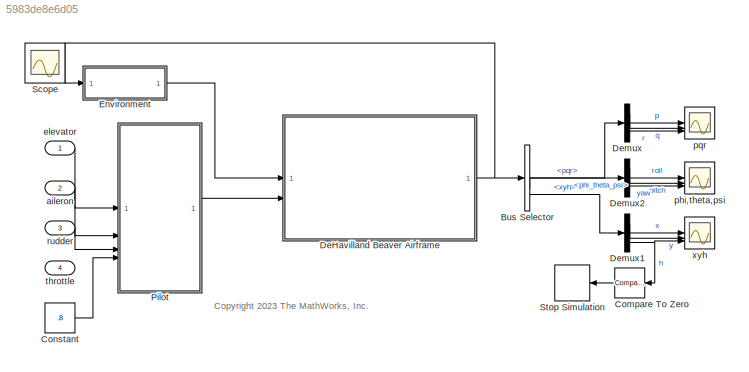
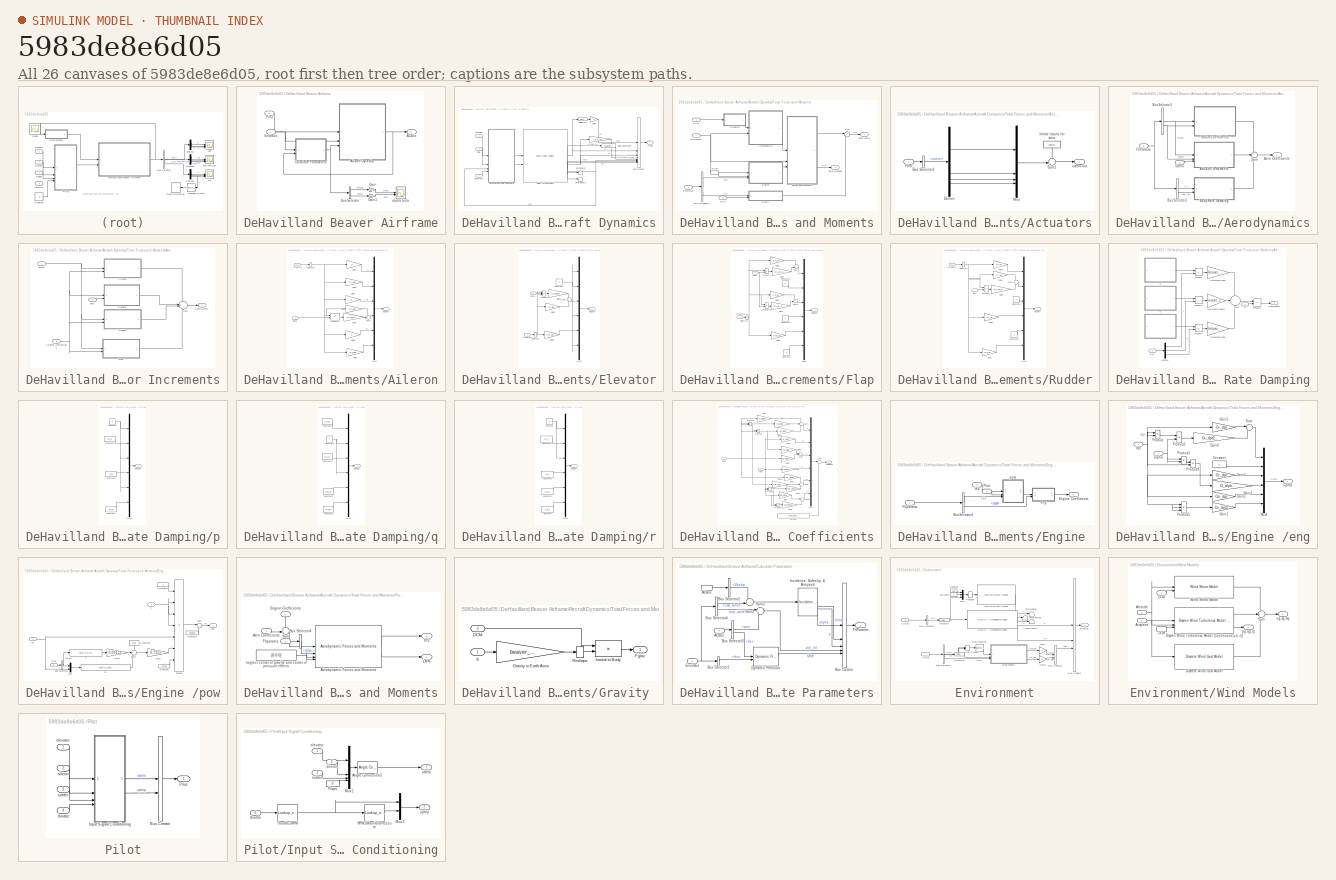
[diagram: thumbnail index - all 26 canvases of the model, root first then tree order]
MODEL slx_5983de8e6d05
KIND model
CONFIG AbsTol = 1e-3
CONFIG EnableMultiTasking = on
CONFIG FixedStep = auto
CONFIG MaxStep = 1/30
CONFIG MinStep = auto
CONFIG PreLoadFcn = load asbdhc2_init;\n\n
CONFIG RelTol = 1e-2
CONFIG SampleTimeConstraint = Unconstrained
CONFIG SolverName = ode45
CONFIG StartTime = 0.0
CONFIG StopTime = inf
BLOCK [BusSelector] Bus Selector
  OutputSignals = pqr,phi_theta_psi,xyh
BLOCK [Reference] Compare To Zero  REF=simulink/Logic and Bit
Operations/Compare
To Zero
  SourceBlock = simulink/Logic and Bit\nOperations/Compare\nTo Zero
  SourceType = Compare To Zero
BLOCK [Constant] Constant
  Value = .8
BLOCK [SubSystem] DeHavilland Beaver Airframe
BLOCK [Outport] DeHavilland Beaver Airframe/ACBus
BLOCK [SubSystem] DeHavilland Beaver Airframe/Aircraft Dynamics
BLOCK [Reference] DeHavilland Beaver Airframe/Aircraft Dynamics/6DoF (Quaternion)  REF=shared6dof/6DOF (Euler Angles)
  LibrarySourceBlock = aerolib6dof2/6DOF (Euler Angles)
  SourceBlock = shared6dof/6DOF (Euler Angles)
  SourceType = 6DOF EoM (Body Axis)
BLOCK [Outport] DeHavilland Beaver Airframe/Aircraft Dynamics/AC Bus
BLOCK [Reference] DeHavilland Beaver Airframe/Aircraft Dynamics/Angle Conversion  REF=aerolibconvert2/Angle Conversion
  SourceBlock = aerolibconvert2/Angle Conversion
  SourceType = Angle Conversion
BLOCK [BusCreator] DeHavilland Beaver Airframe/Aircraft Dynamics/Bus Creator
  DisplayOption = bar
  InheritFromInputs = on
  Inputs = 8
BLOCK [Inport] DeHavilland Beaver Airframe/Aircraft Dynamics/EnvirBus
  Port = 2
BLOCK [Inport] DeHavilland Beaver Airframe/Aircraft Dynamics/FltParams
  Port = 3
BLOCK [Gain] DeHavilland Beaver Airframe/Aircraft Dynamics/Hdot
  Gain = -1
  NameLocation = top
  OutDataTypeStr = Inherit: Same as input
  ParamDataTypeStr = Inherit: Same as input
  SaturateOnIntegerOverflow = on
BLOCK [Inport] DeHavilland Beaver Airframe/Aircraft Dynamics/Pilot
BLOCK [Selector] DeHavilland Beaver Airframe/Aircraft Dynamics/Selector1
  IndexOptions = Index vector (dialog)
  Indices = [3]
  InputPortWidth = 3
  OutputSizes = 1
BLOCK [Terminator] DeHavilland Beaver Airframe/Aircraft Dynamics/Terminator
BLOCK [Terminator] DeHavilland Beaver Airframe/Aircraft Dynamics/Terminator1
BLOCK [SubSystem] DeHavilland Beaver Airframe/Aircraft Dynamics/Total Forces and Moments
  NameLocation = top
BLOCK [SubSystem] DeHavilland Beaver Airframe/Aircraft Dynamics/Total Forces and Moments/Actuators
BLOCK [BusSelector] DeHavilland Beaver Airframe/Aircraft Dynamics/Total Forces and Moments/Actuators/Bus Selector2
  OutputSignals = uaero
BLOCK [Demux] DeHavilland Beaver Airframe/Aircraft Dynamics/Total Forces and Moments/Actuators/Demux
BLOCK [Constant] DeHavilland Beaver Airframe/Aircraft Dynamics/Total Forces and Moments/Actuators/Initial inputs for aero
  NameLocation = left
  Value = uaero0
BLOCK [Mux] DeHavilland Beaver Airframe/Aircraft Dynamics/Total Forces and Moments/Actuators/Mux
  DisplayOption = bar
BLOCK [Inport] DeHavilland Beaver Airframe/Aircraft Dynamics/Total Forces and Moments/Actuators/Pilot
BLOCK [Sum] DeHavilland Beaver Airframe/Aircraft Dynamics/Total Forces and Moments/Actuators/Sum1
  InputSameDT = on
  Inputs = ++|
  OutDataTypeStr = Inherit: Same as first input
  SaturateOnIntegerOverflow = on
BLOCK [Outport] DeHavilland Beaver Airframe/Aircraft Dynamics/Total Forces and Moments/Actuators/uaero-out
BLOCK [SubSystem] DeHavilland Beaver Airframe/Aircraft Dynamics/Total Forces and Moments/Aerodynamics
BLOCK [SubSystem] DeHavilland Beaver Airframe/Aircraft Dynamics/Total Forces and Moments/Aerodynamics/Actuator Increments
BLOCK [Inport] DeHavilland Beaver Airframe/Aircraft Dynamics/Total Forces and Moments/Aerodynamics/Actuator Increments/Actuator Deflections
  Port = 3
BLOCK [SubSystem] DeHavilland Beaver Airframe/Aircraft Dynamics/Total Forces and Moments/Aerodynamics/Actuator Increments/Aileron
  LibrarySourceBlock = aeroblk_lib_HL20/HL20\nAirframe/Aerodynamic\nCoefficients/Actuator\nIncrements/Aileron
BLOCK [Inport] DeHavilland Beaver Airframe/Aircraft Dynamics/Total Forces and Moments/Aerodynamics/Actuator Increments/Aileron/Actuators
  Port = 2
BLOCK [Gain] DeHavilland Beaver Airframe/Aircraft Dynamics/Total Forces and Moments/Aerodynamics/Actuator Increments/Aileron/Gain1
  Gain = 0
  OutDataTypeStr = Inherit: Same as input
  ParamDataTypeStr = Inherit: Same as input
  SaturateOnIntegerOverflow = on
BLOCK [Gain] DeHavilland Beaver Airframe/Aircraft Dynamics/Total Forces and Moments/Aerodynamics/Actuator Increments/Aileron/Gain2
  Gain = Cy_da
  OutDataTypeStr = Inherit: Same as input
  ParamDataTypeStr = Inherit: Same as input
  SaturateOnIntegerOverflow = on
BLOCK [Gain] DeHavilland Beaver Airframe/Aircraft Dynamics/Total Forces and Moments/Aerodynamics/Actuator Increments/Aileron/Gain3
  Gain = 0
  OutDataTypeStr = Inherit: Same as input
  ParamDataTypeStr = Inherit: Same as input
  SaturateOnIntegerOverflow = on
BLOCK [Gain] DeHavilland Beaver Airframe/Aircraft Dynamics/Total Forces and Moments/Aerodynamics/Actuator Increments/Aileron/Gain4
  Gain = Cn_da
  OutDataTypeStr = Inherit: Same as input
  ParamDataTypeStr = Inherit: Same as input
  SaturateOnIntegerOverflow = on
BLOCK [Gain] DeHavilland Beaver Airframe/Aircraft Dynamics/Total Forces and Moments/Aerodynamics/Actuator Increments/Aileron/Gain5
  Gain = 0
  OutDataTypeStr = Inherit: Same as input
  ParamDataTypeStr = Inherit: Same as input
  SaturateOnIntegerOverflow = on
BLOCK [Gain] DeHavilland Beaver Airframe/Aircraft Dynamics/Total Forces and Moments/Aerodynamics/Actuator Increments/Aileron/Gain6
  Gain = Cl_da
  OutDataTypeStr = Inherit: Same as input
  ParamDataTypeStr = Inherit: Same as input
  SaturateOnIntegerOverflow = on
BLOCK [Gain] DeHavilland Beaver Airframe/Aircraft Dynamics/Total Forces and Moments/Aerodynamics/Actuator Increments/Aileron/Gain7
  Gain = Cl_da_alpha
  OutDataTypeStr = Inherit: Same as input
  ParamDataTypeStr = Inherit: Same as input
  SaturateOnIntegerOverflow = on
BLOCK [Mux] DeHavilland Beaver Airframe/Aircraft Dynamics/Total Forces and Moments/Aerodynamics/Actuator Increments/Aileron/Mux1
  Inputs = 6
BLOCK [Product] DeHavilland Beaver Airframe/Aircraft Dynamics/Total Forces and Moments/Aerodynamics/Actuator Increments/Aileron/Product4
  InputSameDT = on
  OutDataTypeStr = Inherit: Same as first input
  SaturateOnIntegerOverflow = on
BLOCK [Selector] DeHavilland Beaver Airframe/Aircraft Dynamics/Total Forces and Moments/Aerodynamics/Actuator Increments/Aileron/Selector1
  IndexOptions = Index vector (dialog)
  Indices = 2
  InputPortWidth = 4
  OutputSizes = 1
BLOCK [Sum] DeHavilland Beaver Airframe/Aircraft Dynamics/Total Forces and Moments/Aerodynamics/Actuator Increments/Aileron/Sum1
  Inputs = ++|
  SaturateOnIntegerOverflow = on
BLOCK [Inport] DeHavilland Beaver Airframe/Aircraft Dynamics/Total Forces and Moments/Aerodynamics/Actuator Increments/Aileron/alpha
BLOCK [Outport] DeHavilland Beaver Airframe/Aircraft Dynamics/Total Forces and Moments/Aerodynamics/Actuator Increments/Aileron/delCoeff
BLOCK [Outport] DeHavilland Beaver Airframe/Aircraft Dynamics/Total Forces and Moments/Aerodynamics/Actuator Increments/Coefficients
BLOCK [SubSystem] DeHavilland Beaver Airframe/Aircraft Dynamics/Total Forces and Moments/Aerodynamics/Actuator Increments/Elevator
  LibrarySourceBlock = aeroblk_lib_HL20/HL20\nAirframe/Aerodynamic\nCoefficients/Actuator\nIncrements/Elevator
BLOCK [Inport] DeHavilland Beaver Airframe/Aircraft Dynamics/Total Forces and Moments/Aerodynamics/Actuator Increments/Elevator/Actuators
BLOCK [Inport] DeHavilland Beaver Airframe/Aircraft Dynamics/Total Forces and Moments/Aerodynamics/Actuator Increments/Elevator/Beta
  Port = 2
BLOCK [Constant] DeHavilland Beaver Airframe/Aircraft Dynamics/Total Forces and Moments/Aerodynamics/Actuator Increments/Elevator/Constant1
  Value = 0
BLOCK [Gain] DeHavilland Beaver Airframe/Aircraft Dynamics/Total Forces and Moments/Aerodynamics/Actuator Increments/Elevator/Gain1
  Gain = Cz_de
  OutDataTypeStr = Inherit: Same as input
  ParamDataTypeStr = Inherit: Same as input
  SaturateOnIntegerOverflow = on
BLOCK [Gain] DeHavilland Beaver Airframe/Aircraft Dynamics/Total Forces and Moments/Aerodynamics/Actuator Increments/Elevator/Gain2
  Gain = Cz_de_beta
  OutDataTypeStr = Inherit: Same as input
  ParamDataTypeStr = Inherit: Same as input
  SaturateOnIntegerOverflow = on
BLOCK [Gain] DeHavilland Beaver Airframe/Aircraft Dynamics/Total Forces and Moments/Aerodynamics/Actuator Increments/Elevator/Gain3
  Gain = Cm_de
  OutDataTypeStr = Inherit: Same as input
  ParamDataTypeStr = Inherit: Same as input
  SaturateOnIntegerOverflow = on
BLOCK [Mux] DeHavilland Beaver Airframe/Aircraft Dynamics/Total Forces and Moments/Aerodynamics/Actuator Increments/Elevator/Mux1
  Inputs = 6
BLOCK [Product] DeHavilland Beaver Airframe/Aircraft Dynamics/Total Forces and Moments/Aerodynamics/Actuator Increments/Elevator/Product4
  InputSameDT = on
  Inputs = 3
  OutDataTypeStr = Inherit: Same as first input
  SaturateOnIntegerOverflow = on
BLOCK [Selector] DeHavilland Beaver Airframe/Aircraft Dynamics/Total Forces and Moments/Aerodynamics/Actuator Increments/Elevator/Selector1
  IndexOptions = Index vector (dialog)
  Indices = 1
  InputPortWidth = 4
  OutputSizes = 1
BLOCK [Sum] DeHavilland Beaver Airframe/Aircraft Dynamics/Total Forces and Moments/Aerodynamics/Actuator Increments/Elevator/Sum1
  SaturateOnIntegerOverflow = on
BLOCK [Outport] DeHavilland Beaver Airframe/Aircraft Dynamics/Total Forces and Moments/Aerodynamics/Actuator Increments/Elevator/delCoeff
BLOCK [SubSystem] DeHavilland Beaver Airframe/Aircraft Dynamics/Total Forces and Moments/Aerodynamics/Actuator Increments/Flap
  LibrarySourceBlock = aeroblk_lib_HL20/HL20\nAirframe/Aerodynamic\nCoefficients/Actuator\nIncrements/Flap(pos)
BLOCK [Inport] DeHavilland Beaver Airframe/Aircraft Dynamics/Total Forces and Moments/Aerodynamics/Actuator Increments/Flap/Actuators
  Port = 2
BLOCK [Inport] DeHavilland Beaver Airframe/Aircraft Dynamics/Total Forces and Moments/Aerodynamics/Actuator Increments/Flap/Alpha
BLOCK [Constant] DeHavilland Beaver Airframe/Aircraft Dynamics/Total Forces and Moments/Aerodynamics/Actuator Increments/Flap/Constant1
  Value = 0
BLOCK [Constant] DeHavilland Beaver Airframe/Aircraft Dynamics/Total Forces and Moments/Aerodynamics/Actuator Increments/Flap/Constant2
  Value = 0
BLOCK [Constant] DeHavilland Beaver Airframe/Aircraft Dynamics/Total Forces and Moments/Aerodynamics/Actuator Increments/Flap/Constant3
  Value = 0
BLOCK [Gain] DeHavilland Beaver Airframe/Aircraft Dynamics/Total Forces and Moments/Aerodynamics/Actuator Increments/Flap/Gain1
  Gain = Cx_df
  OutDataTypeStr = Inherit: Same as input
  ParamDataTypeStr = Inherit: Same as input
  SaturateOnIntegerOverflow = on
BLOCK [Gain] DeHavilland Beaver Airframe/Aircraft Dynamics/Total Forces and Moments/Aerodynamics/Actuator Increments/Flap/Gain2
  Gain = Cx_df_alpha
  OutDataTypeStr = Inherit: Same as input
  ParamDataTypeStr = Inherit: Same as input
  SaturateOnIntegerOverflow = on
BLOCK [Gain] DeHavilland Beaver Airframe/Aircraft Dynamics/Total Forces and Moments/Aerodynamics/Actuator Increments/Flap/Gain3
  Gain = Cz_df
  OutDataTypeStr = Inherit: Same as input
  ParamDataTypeStr = Inherit: Same as input
  SaturateOnIntegerOverflow = on
BLOCK [Gain] DeHavilland Beaver Airframe/Aircraft Dynamics/Total Forces and Moments/Aerodynamics/Actuator Increments/Flap/Gain4
  Gain = Cz_df_alpha
  OutDataTypeStr = Inherit: Same as input
  ParamDataTypeStr = Inherit: Same as input
  SaturateOnIntegerOverflow = on
BLOCK [Gain] DeHavilland Beaver Airframe/Aircraft Dynamics/Total Forces and Moments/Aerodynamics/Actuator Increments/Flap/Gain5
  Gain = Cm_df
  OutDataTypeStr = Inherit: Same as input
  ParamDataTypeStr = Inherit: Same as input
  SaturateOnIntegerOverflow = on
BLOCK [Mux] DeHavilland Beaver Airframe/Aircraft Dynamics/Total Forces and Moments/Aerodynamics/Actuator Increments/Flap/Mux1
  Inputs = 6
BLOCK [Product] DeHavilland Beaver Airframe/Aircraft Dynamics/Total Forces and Moments/Aerodynamics/Actuator Increments/Flap/Product1
  InputSameDT = on
  OutDataTypeStr = Inherit: Same as first input
  SaturateOnIntegerOverflow = on
BLOCK [Product] DeHavilland Beaver Airframe/Aircraft Dynamics/Total Forces and Moments/Aerodynamics/Actuator Increments/Flap/Product4
  InputSameDT = on
  OutDataTypeStr = Inherit: Same as first input
  SaturateOnIntegerOverflow = on
BLOCK [Selector] DeHavilland Beaver Airframe/Aircraft Dynamics/Total Forces and Moments/Aerodynamics/Actuator Increments/Flap/Selector1
  IndexOptions = Index vector (dialog)
  Indices = 4
  InputPortWidth = 4
  OutputSizes = 1
BLOCK [Sum] DeHavilland Beaver Airframe/Aircraft Dynamics/Total Forces and Moments/Aerodynamics/Actuator Increments/Flap/Sum1
  SaturateOnIntegerOverflow = on
BLOCK [Sum] DeHavilland Beaver Airframe/Aircraft Dynamics/Total Forces and Moments/Aerodynamics/Actuator Increments/Flap/Sum2
  SaturateOnIntegerOverflow = on
BLOCK [Outport] DeHavilland Beaver Airframe/Aircraft Dynamics/Total Forces and Moments/Aerodynamics/Actuator Increments/Flap/delCoeff
BLOCK [SubSystem] DeHavilland Beaver Airframe/Aircraft Dynamics/Total Forces and Moments/Aerodynamics/Actuator Increments/Rudder
  LibrarySourceBlock = aeroblk_lib_HL20/HL20\nAirframe/Aerodynamic\nCoefficients/Actuator\nIncrements/Rudder
BLOCK [Inport] DeHavilland Beaver Airframe/Aircraft Dynamics/Total Forces and Moments/Aerodynamics/Actuator Increments/Rudder/Actuators
  Port = 2
BLOCK [Inport] DeHavilland Beaver Airframe/Aircraft Dynamics/Total Forces and Moments/Aerodynamics/Actuator Increments/Rudder/Alpha
  NameLocation = top
BLOCK [Constant] DeHavilland Beaver Airframe/Aircraft Dynamics/Total Forces and Moments/Aerodynamics/Actuator Increments/Rudder/Constant1
  Value = 0
BLOCK [Constant] DeHavilland Beaver Airframe/Aircraft Dynamics/Total Forces and Moments/Aerodynamics/Actuator Increments/Rudder/Constant2
  Value = 0
BLOCK [Gain] DeHavilland Beaver Airframe/Aircraft Dynamics/Total Forces and Moments/Aerodynamics/Actuator Increments/Rudder/Gain1
  Gain = Cl_dr
  OutDataTypeStr = Inherit: Same as input
  ParamDataTypeStr = Inherit: Same as input
  SaturateOnIntegerOverflow = on
BLOCK [Gain] DeHavilland Beaver Airframe/Aircraft Dynamics/Total Forces and Moments/Aerodynamics/Actuator Increments/Rudder/Gain2
  Gain = Cn_dr
  OutDataTypeStr = Inherit: Same as input
  ParamDataTypeStr = Inherit: Same as input
  SaturateOnIntegerOverflow = on
BLOCK [Gain] DeHavilland Beaver Airframe/Aircraft Dynamics/Total Forces and Moments/Aerodynamics/Actuator Increments/Rudder/Gain3
  Gain = Cy_dr_alpha
  OutDataTypeStr = Inherit: Same as input
  ParamDataTypeStr = Inherit: Same as input
  SaturateOnIntegerOverflow = on
BLOCK [Gain] DeHavilland Beaver Airframe/Aircraft Dynamics/Total Forces and Moments/Aerodynamics/Actuator Increments/Rudder/Gain4
  Gain = Cy_dr
  OutDataTypeStr = Inherit: Same as input
  ParamDataTypeStr = Inherit: Same as input
  SaturateOnIntegerOverflow = on
BLOCK [Gain] DeHavilland Beaver Airframe/Aircraft Dynamics/Total Forces and Moments/Aerodynamics/Actuator Increments/Rudder/Gain5
  Gain = Cx_dr
  OutDataTypeStr = Inherit: Same as input
  ParamDataTypeStr = Inherit: Same as input
  SaturateOnIntegerOverflow = on
BLOCK [Mux] DeHavilland Beaver Airframe/Aircraft Dynamics/Total Forces and Moments/Aerodynamics/Actuator Increments/Rudder/Mux1
  Inputs = 6
BLOCK [Product] DeHavilland Beaver Airframe/Aircraft Dynamics/Total Forces and Moments/Aerodynamics/Actuator Increments/Rudder/Product1
  InputSameDT = on
  OutDataTypeStr = Inherit: Same as first input
  SaturateOnIntegerOverflow = on
BLOCK [Selector] DeHavilland Beaver Airframe/Aircraft Dynamics/Total Forces and Moments/Aerodynamics/Actuator Increments/Rudder/Selector1
  IndexOptions = Index vector (dialog)
  Indices = 3
  InputPortWidth = 4
  OutputSizes = 1
BLOCK [Sum] DeHavilland Beaver Airframe/Aircraft Dynamics/Total Forces and Moments/Aerodynamics/Actuator Increments/Rudder/Sum1
  SaturateOnIntegerOverflow = on
BLOCK [Outport] DeHavilland Beaver Airframe/Aircraft Dynamics/Total Forces and Moments/Aerodynamics/Actuator Increments/Rudder/delCoeff
BLOCK [Sum] DeHavilland Beaver Airframe/Aircraft Dynamics/Total Forces and Moments/Aerodynamics/Actuator Increments/Sum
  InputSameDT = on
  Inputs = ++++
  OutDataTypeStr = Inherit: Same as first input
  SaturateOnIntegerOverflow = on
BLOCK [Inport] DeHavilland Beaver Airframe/Aircraft Dynamics/Total Forces and Moments/Aerodynamics/Actuator Increments/alpha
BLOCK [Inport] DeHavilland Beaver Airframe/Aircraft Dynamics/Total Forces and Moments/Aerodynamics/Actuator Increments/beta
  Port = 2
BLOCK [Outport] DeHavilland Beaver Airframe/Aircraft Dynamics/Total Forces and Moments/Aerodynamics/Aero Coefficients
BLOCK [SubSystem] DeHavilland Beaver Airframe/Aircraft Dynamics/Total Forces and Moments/Aerodynamics/Body Rate Damping
BLOCK [Outport] DeHavilland Beaver Airframe/Aircraft Dynamics/Total Forces and Moments/Aerodynamics/Body Rate Damping/Coefficients
BLOCK [Demux] DeHavilland Beaver Airframe/Aircraft Dynamics/Total Forces and Moments/Aerodynamics/Body Rate Damping/Demux
  DisplayOption = none
  Outputs = 3
BLOCK [Product] DeHavilland Beaver Airframe/Aircraft Dynamics/Total Forces and Moments/Aerodynamics/Body Rate Damping/Product
  InputSameDT = on
  OutDataTypeStr = Inherit: Same as first input
  SaturateOnIntegerOverflow = on
BLOCK [Product] DeHavilland Beaver Airframe/Aircraft Dynamics/Total Forces and Moments/Aerodynamics/Body Rate Damping/Product1
  InputSameDT = on
  OutDataTypeStr = Inherit: Same as first input
  SaturateOnIntegerOverflow = on
BLOCK [Product] DeHavilland Beaver Airframe/Aircraft Dynamics/Total Forces and Moments/Aerodynamics/Body Rate Damping/Product2
  InputSameDT = on
  OutDataTypeStr = Inherit: Same as first input
  SaturateOnIntegerOverflow = on
BLOCK [Product] DeHavilland Beaver Airframe/Aircraft Dynamics/Total Forces and Moments/Aerodynamics/Body Rate Damping/Product3
  InputSameDT = on
  Inputs = */
  OutDataTypeStr = Inherit: Same as first input
  SaturateOnIntegerOverflow = on
BLOCK [Gain] DeHavilland Beaver Airframe/Aircraft Dynamics/Total Forces and Moments/Aerodynamics/Body Rate Damping/Reference Length
  Gain = beaver_c
  OutDataTypeStr = Inherit: Same as input
  ParamDataTypeStr = Inherit: Same as input
  SaturateOnIntegerOverflow = on
BLOCK [Gain] DeHavilland Beaver Airframe/Aircraft Dynamics/Total Forces and Moments/Aerodynamics/Body Rate Damping/Reference Span
  Gain = beaver_b/2
  OutDataTypeStr = Inherit: Same as input
  ParamDataTypeStr = Inherit: Same as input
  SaturateOnIntegerOverflow = on
BLOCK [Gain] DeHavilland Beaver Airframe/Aircraft Dynamics/Total Forces and Moments/Aerodynamics/Body Rate Damping/Reference Span 
  Gain = beaver_b/2
  OutDataTypeStr = Inherit: Same as input
  ParamDataTypeStr = Inherit: Same as input
  SaturateOnIntegerOverflow = on
BLOCK [Sum] DeHavilland Beaver Airframe/Aircraft Dynamics/Total Forces and Moments/Aerodynamics/Body Rate Damping/Sum1
  InputSameDT = on
  Inputs = +++
  OutDataTypeStr = Inherit: Same as first input
  SaturateOnIntegerOverflow = on
BLOCK [Inport] DeHavilland Beaver Airframe/Aircraft Dynamics/Total Forces and Moments/Aerodynamics/Body Rate Damping/V
BLOCK [SubSystem] DeHavilland Beaver Airframe/Aircraft Dynamics/Total Forces and Moments/Aerodynamics/Body Rate Damping/p
BLOCK [Inport] DeHavilland Beaver Airframe/Aircraft Dynamics/Total Forces and Moments/Aerodynamics/Body Rate Damping/p,q,r
  Port = 2
BLOCK [Constant] DeHavilland Beaver Airframe/Aircraft Dynamics/Total Forces and Moments/Aerodynamics/Body Rate Damping/p/Constant1
  Value = 0
BLOCK [Constant] DeHavilland Beaver Airframe/Aircraft Dynamics/Total Forces and Moments/Aerodynamics/Body Rate Damping/p/Constant2
  Value = Cy_p
BLOCK [Constant] DeHavilland Beaver Airframe/Aircraft Dynamics/Total Forces and Moments/Aerodynamics/Body Rate Damping/p/Constant3
  Value = Cl_p
BLOCK [Constant] DeHavilland Beaver Airframe/Aircraft Dynamics/Total Forces and Moments/Aerodynamics/Body Rate Damping/p/Constant4
  Value = Cn_p
BLOCK [Mux] DeHavilland Beaver Airframe/Aircraft Dynamics/Total Forces and Moments/Aerodynamics/Body Rate Damping/p/Mux1
  Inputs = 6
BLOCK [Outport] DeHavilland Beaver Airframe/Aircraft Dynamics/Total Forces and Moments/Aerodynamics/Body Rate Damping/p/delCoeff
BLOCK [SubSystem] DeHavilland Beaver Airframe/Aircraft Dynamics/Total Forces and Moments/Aerodynamics/Body Rate Damping/q
BLOCK [Constant] DeHavilland Beaver Airframe/Aircraft Dynamics/Total Forces and Moments/Aerodynamics/Body Rate Damping/q/Constant1
  Value = 0
BLOCK [Constant] DeHavilland Beaver Airframe/Aircraft Dynamics/Total Forces and Moments/Aerodynamics/Body Rate Damping/q/Constant2
  Value = Cz_q
BLOCK [Constant] DeHavilland Beaver Airframe/Aircraft Dynamics/Total Forces and Moments/Aerodynamics/Body Rate Damping/q/Constant3
  Value = Cx_q
BLOCK [Constant] DeHavilland Beaver Airframe/Aircraft Dynamics/Total Forces and Moments/Aerodynamics/Body Rate Damping/q/Constant4
  Value = Cm_q
BLOCK [Constant] DeHavilland Beaver Airframe/Aircraft Dynamics/Total Forces and Moments/Aerodynamics/Body Rate Damping/q/Constant5
  Value = Cn_q
BLOCK [Mux] DeHavilland Beaver Airframe/Aircraft Dynamics/Total Forces and Moments/Aerodynamics/Body Rate Damping/q/Mux1
  Inputs = 6
BLOCK [Outport] DeHavilland Beaver Airframe/Aircraft Dynamics/Total Forces and Moments/Aerodynamics/Body Rate Damping/q/delCoeff
BLOCK [SubSystem] DeHavilland Beaver Airframe/Aircraft Dynamics/Total Forces and Moments/Aerodynamics/Body Rate Damping/r
BLOCK [Constant] DeHavilland Beaver Airframe/Aircraft Dynamics/Total Forces and Moments/Aerodynamics/Body Rate Damping/r/Constant
  Value = 0
BLOCK [Constant] DeHavilland Beaver Airframe/Aircraft Dynamics/Total Forces and Moments/Aerodynamics/Body Rate Damping/r/Constant1
  Value = Cy_r
BLOCK [Constant] DeHavilland Beaver Airframe/Aircraft Dynamics/Total Forces and Moments/Aerodynamics/Body Rate Damping/r/Constant2
  Value = Cl_r
BLOCK [Constant] DeHavilland Beaver Airframe/Aircraft Dynamics/Total Forces and Moments/Aerodynamics/Body Rate Damping/r/Constant3
  Value = Cm_r
BLOCK [Constant] DeHavilland Beaver Airframe/Aircraft Dynamics/Total Forces and Moments/Aerodynamics/Body Rate Damping/r/Constant4
  Value = Cn_r
BLOCK [Mux] DeHavilland Beaver Airframe/Aircraft Dynamics/Total Forces and Moments/Aerodynamics/Body Rate Damping/r/Mux1
  Inputs = 6
BLOCK [Outport] DeHavilland Beaver Airframe/Aircraft Dynamics/Total Forces and Moments/Aerodynamics/Body Rate Damping/r/delCoeff
BLOCK [BusSelector] DeHavilland Beaver Airframe/Aircraft Dynamics/Total Forces and Moments/Aerodynamics/Bus Selector1
  OutputSignals = alpha,beta
BLOCK [BusSelector] DeHavilland Beaver Airframe/Aircraft Dynamics/Total Forces and Moments/Aerodynamics/Bus Selector2
  OutputSignals = V,pqr_tot
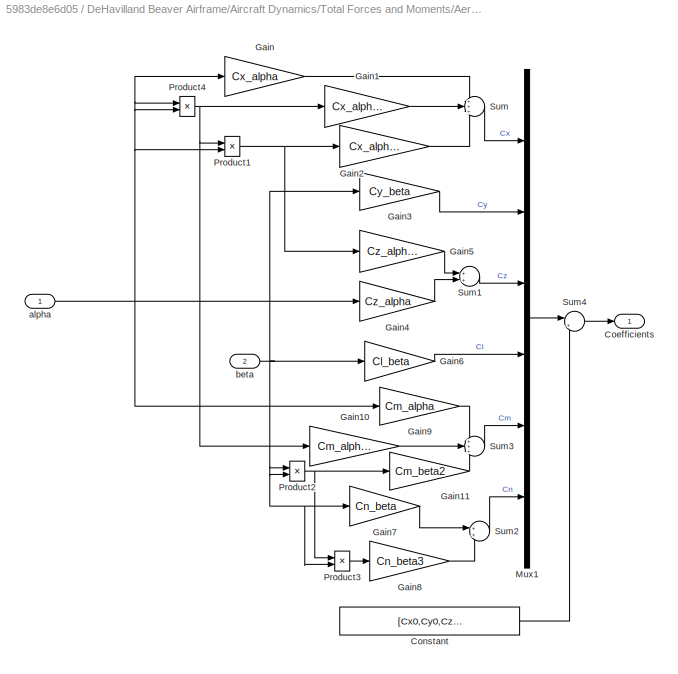
BLOCK [SubSystem] DeHavilland Beaver Airframe/Aircraft Dynamics/Total Forces and Moments/Aerodynamics/Datum Coefficients
BLOCK [Outport] DeHavilland Beaver Airframe/Aircraft Dynamics/Total Forces and Moments/Aerodynamics/Datum Coefficients/Coefficients
BLOCK [Constant] DeHavilland Beaver Airframe/Aircraft Dynamics/Total Forces and Moments/Aerodynamics/Datum Coefficients/Constant
  Value = [Cx0,Cy0,Cz0,Cl0,Cm0,Cn0]
BLOCK [Gain] DeHavilland Beaver Airframe/Aircraft Dynamics/Total Forces and Moments/Aerodynamics/Datum Coefficients/Gain
  Gain = Cx_alpha
  OutDataTypeStr = Inherit: Same as input
  ParamDataTypeStr = Inherit: Same as input
  SaturateOnIntegerOverflow = on
BLOCK [Gain] DeHavilland Beaver Airframe/Aircraft Dynamics/Total Forces and Moments/Aerodynamics/Datum Coefficients/Gain1
  Gain = Cx_alpha2
  OutDataTypeStr = Inherit: Same as input
  ParamDataTypeStr = Inherit: Same as input
  SaturateOnIntegerOverflow = on
BLOCK [Gain] DeHavilland Beaver Airframe/Aircraft Dynamics/Total Forces and Moments/Aerodynamics/Datum Coefficients/Gain10
  Gain = Cm_alpha2
  OutDataTypeStr = Inherit: Same as input
  ParamDataTypeStr = Inherit: Same as input
  SaturateOnIntegerOverflow = on
BLOCK [Gain] DeHavilland Beaver Airframe/Aircraft Dynamics/Total Forces and Moments/Aerodynamics/Datum Coefficients/Gain11
  Gain = Cm_beta2
  OutDataTypeStr = Inherit: Same as input
  ParamDataTypeStr = Inherit: Same as input
  SaturateOnIntegerOverflow = on
BLOCK [Gain] DeHavilland Beaver Airframe/Aircraft Dynamics/Total Forces and Moments/Aerodynamics/Datum Coefficients/Gain2
  Gain = Cx_alpha3
  OutDataTypeStr = Inherit: Same as input
  ParamDataTypeStr = Inherit: Same as input
  SaturateOnIntegerOverflow = on
BLOCK [Gain] DeHavilland Beaver Airframe/Aircraft Dynamics/Total Forces and Moments/Aerodynamics/Datum Coefficients/Gain3
  Gain = Cy_beta
  OutDataTypeStr = Inherit: Same as input
  ParamDataTypeStr = Inherit: Same as input
  SaturateOnIntegerOverflow = on
BLOCK [Gain] DeHavilland Beaver Airframe/Aircraft Dynamics/Total Forces and Moments/Aerodynamics/Datum Coefficients/Gain4
  Gain = Cz_alpha
  OutDataTypeStr = Inherit: Same as input
  ParamDataTypeStr = Inherit: Same as input
  SaturateOnIntegerOverflow = on
BLOCK [Gain] DeHavilland Beaver Airframe/Aircraft Dynamics/Total Forces and Moments/Aerodynamics/Datum Coefficients/Gain5
  Gain = Cz_alpha3
  OutDataTypeStr = Inherit: Same as input
  ParamDataTypeStr = Inherit: Same as input
  SaturateOnIntegerOverflow = on
BLOCK [Gain] DeHavilland Beaver Airframe/Aircraft Dynamics/Total Forces and Moments/Aerodynamics/Datum Coefficients/Gain6
  Gain = Cl_beta
  OutDataTypeStr = Inherit: Same as input
  ParamDataTypeStr = Inherit: Same as input
  SaturateOnIntegerOverflow = on
BLOCK [Gain] DeHavilland Beaver Airframe/Aircraft Dynamics/Total Forces and Moments/Aerodynamics/Datum Coefficients/Gain7
  Gain = Cn_beta
  OutDataTypeStr = Inherit: Same as input
  ParamDataTypeStr = Inherit: Same as input
  SaturateOnIntegerOverflow = on
BLOCK [Gain] DeHavilland Beaver Airframe/Aircraft Dynamics/Total Forces and Moments/Aerodynamics/Datum Coefficients/Gain8
  Gain = Cn_beta3
  OutDataTypeStr = Inherit: Same as input
  ParamDataTypeStr = Inherit: Same as input
  SaturateOnIntegerOverflow = on
BLOCK [Gain] DeHavilland Beaver Airframe/Aircraft Dynamics/Total Forces and Moments/Aerodynamics/Datum Coefficients/Gain9
  Gain = Cm_alpha
  OutDataTypeStr = Inherit: Same as input
  ParamDataTypeStr = Inherit: Same as input
  SaturateOnIntegerOverflow = on
BLOCK [Mux] DeHavilland Beaver Airframe/Aircraft Dynamics/Total Forces and Moments/Aerodynamics/Datum Coefficients/Mux1
  Inputs = 6
BLOCK [Product] DeHavilland Beaver Airframe/Aircraft Dynamics/Total Forces and Moments/Aerodynamics/Datum Coefficients/Product1
  InputSameDT = on
  OutDataTypeStr = Inherit: Same as first input
  SaturateOnIntegerOverflow = on
BLOCK [Product] DeHavilland Beaver Airframe/Aircraft Dynamics/Total Forces and Moments/Aerodynamics/Datum Coefficients/Product2
  InputSameDT = on
  OutDataTypeStr = Inherit: Same as first input
  SaturateOnIntegerOverflow = on
BLOCK [Product] DeHavilland Beaver Airframe/Aircraft Dynamics/Total Forces and Moments/Aerodynamics/Datum Coefficients/Product3
  InputSameDT = on
  OutDataTypeStr = Inherit: Same as first input
  SaturateOnIntegerOverflow = on
BLOCK [Product] DeHavilland Beaver Airframe/Aircraft Dynamics/Total Forces and Moments/Aerodynamics/Datum Coefficients/Product4
  InputSameDT = on
  OutDataTypeStr = Inherit: Same as first input
  SaturateOnIntegerOverflow = on
BLOCK [Sum] DeHavilland Beaver Airframe/Aircraft Dynamics/Total Forces and Moments/Aerodynamics/Datum Coefficients/Sum
  Inputs = +++
  SaturateOnIntegerOverflow = on
BLOCK [Sum] DeHavilland Beaver Airframe/Aircraft Dynamics/Total Forces and Moments/Aerodynamics/Datum Coefficients/Sum1
  SaturateOnIntegerOverflow = on
BLOCK [Sum] DeHavilland Beaver Airframe/Aircraft Dynamics/Total Forces and Moments/Aerodynamics/Datum Coefficients/Sum2
  SaturateOnIntegerOverflow = on
BLOCK [Sum] DeHavilland Beaver Airframe/Aircraft Dynamics/Total Forces and Moments/Aerodynamics/Datum Coefficients/Sum3
  Inputs = +++
  SaturateOnIntegerOverflow = on
BLOCK [Sum] DeHavilland Beaver Airframe/Aircraft Dynamics/Total Forces and Moments/Aerodynamics/Datum Coefficients/Sum4
  Inputs = |++
  SaturateOnIntegerOverflow = on
BLOCK [Inport] DeHavilland Beaver Airframe/Aircraft Dynamics/Total Forces and Moments/Aerodynamics/Datum Coefficients/alpha
BLOCK [Inport] DeHavilland Beaver Airframe/Aircraft Dynamics/Total Forces and Moments/Aerodynamics/Datum Coefficients/beta
  Port = 2
BLOCK [Inport] DeHavilland Beaver Airframe/Aircraft Dynamics/Total Forces and Moments/Aerodynamics/FltParams
  Port = 2
BLOCK [Sum] DeHavilland Beaver Airframe/Aircraft Dynamics/Total Forces and Moments/Aerodynamics/Sum
  Inputs = +++
  SaturateOnIntegerOverflow = on
BLOCK [Inport] DeHavilland Beaver Airframe/Aircraft Dynamics/Total Forces and Moments/Aerodynamics/Uaero
BLOCK [BusSelector] DeHavilland Beaver Airframe/Aircraft Dynamics/Total Forces and Moments/Bus Selector4
  OutputSignals = rho,g
BLOCK [Inport] DeHavilland Beaver Airframe/Aircraft Dynamics/Total Forces and Moments/DCM
  Port = 3
BLOCK [SubSystem] DeHavilland Beaver Airframe/Aircraft Dynamics/Total Forces and Moments/Engine 
BLOCK [BusSelector] DeHavilland Beaver Airframe/Aircraft Dynamics/Total Forces and Moments/Engine /Bus Selector4
  OutputSignals = V,alpha
BLOCK [Outport] DeHavilland Beaver Airframe/Aircraft Dynamics/Total Forces and Moments/Engine /Engine Coefficients
BLOCK [Inport] DeHavilland Beaver Airframe/Aircraft Dynamics/Total Forces and Moments/Engine /Fltparams
BLOCK [Inport] DeHavilland Beaver Airframe/Aircraft Dynamics/Total Forces and Moments/Engine /Pilot
  Port = 2
BLOCK [SubSystem] DeHavilland Beaver Airframe/Aircraft Dynamics/Total Forces and Moments/Engine /eng
BLOCK [Constant] DeHavilland Beaver Airframe/Aircraft Dynamics/Total Forces and Moments/Engine /eng/Constant
  Value = 0
BLOCK [Outport] DeHavilland Beaver Airframe/Aircraft Dynamics/Total Forces and Moments/Engine /eng/Cprop
BLOCK [Gain] DeHavilland Beaver Airframe/Aircraft Dynamics/Total Forces and Moments/Engine /eng/Gain1
  Gain = Cn_dpt3
  OutDataTypeStr = Inherit: Same as input
  ParamDataTypeStr = Inherit: Same as input
  SaturateOnIntegerOverflow = on
BLOCK [Gain] DeHavilland Beaver Airframe/Aircraft Dynamics/Total Forces and Moments/Engine /eng/Gain2
  Gain = Cm_dpt
  OutDataTypeStr = Inherit: Same as input
  ParamDataTypeStr = Inherit: Same as input
  SaturateOnIntegerOverflow = on
BLOCK [Gain] DeHavilland Beaver Airframe/Aircraft Dynamics/Total Forces and Moments/Engine /eng/Gain3
  Gain = Cl_alpha2_dpt
  OutDataTypeStr = Inherit: Same as input
  ParamDataTypeStr = Inherit: Same as input
  SaturateOnIntegerOverflow = on
BLOCK [Gain] DeHavilland Beaver Airframe/Aircraft Dynamics/Total Forces and Moments/Engine /eng/Gain4
  Gain = Cz_dpt
  OutDataTypeStr = Inherit: Same as input
  ParamDataTypeStr = Inherit: Same as input
  SaturateOnIntegerOverflow = on
BLOCK [Gain] DeHavilland Beaver Airframe/Aircraft Dynamics/Total Forces and Moments/Engine /eng/Gain5
  Gain = Cx_dpt
  OutDataTypeStr = Inherit: Same as input
  ParamDataTypeStr = Inherit: Same as input
  SaturateOnIntegerOverflow = on
BLOCK [Gain] DeHavilland Beaver Airframe/Aircraft Dynamics/Total Forces and Moments/Engine /eng/Gain6
  Gain = Cx_dpt2_alpha
  OutDataTypeStr = Inherit: Same as input
  ParamDataTypeStr = Inherit: Same as input
  SaturateOnIntegerOverflow = on
BLOCK [Mux] DeHavilland Beaver Airframe/Aircraft Dynamics/Total Forces and Moments/Engine /eng/Mux2
  Inputs = 6
BLOCK [Product] DeHavilland Beaver Airframe/Aircraft Dynamics/Total Forces and Moments/Engine /eng/Product
  OutDataTypeStr = Inherit: Same as first input
  SaturateOnIntegerOverflow = on
BLOCK [Product] DeHavilland Beaver Airframe/Aircraft Dynamics/Total Forces and Moments/Engine /eng/Product2
  OutDataTypeStr = Inherit: Same as first input
  SaturateOnIntegerOverflow = on
BLOCK [Product] DeHavilland Beaver Airframe/Aircraft Dynamics/Total Forces and Moments/Engine /eng/Product3
  OutDataTypeStr = Inherit: Same as first input
  SaturateOnIntegerOverflow = on
BLOCK [Product] DeHavilland Beaver Airframe/Aircraft Dynamics/Total Forces and Moments/Engine /eng/Product4
  OutDataTypeStr = Inherit: Same as first input
  SaturateOnIntegerOverflow = on
BLOCK [Product] DeHavilland Beaver Airframe/Aircraft Dynamics/Total Forces and Moments/Engine /eng/Product5
  Inputs = 3
  OutDataTypeStr = Inherit: Same as first input
  SaturateOnIntegerOverflow = on
BLOCK [Sum] DeHavilland Beaver Airframe/Aircraft Dynamics/Total Forces and Moments/Engine /eng/Sum
  Inputs = |++
  SaturateOnIntegerOverflow = on
BLOCK [Inport] DeHavilland Beaver Airframe/Aircraft Dynamics/Total Forces and Moments/Engine /eng/alpha
  Port = 2
BLOCK [Inport] DeHavilland Beaver Airframe/Aircraft Dynamics/Total Forces and Moments/Engine /eng/dpt
BLOCK [SubSystem] DeHavilland Beaver Airframe/Aircraft Dynamics/Total Forces and Moments/Engine /pow
BLOCK [BusSelector] DeHavilland Beaver Airframe/Aircraft Dynamics/Total Forces and Moments/Engine /pow/Bus Selector1
  OutputSignals = uprop
BLOCK [Constant] DeHavilland Beaver Airframe/Aircraft Dynamics/Total Forces and Moments/Engine /pow/Constant
  Value = 191.18
BLOCK [Constant] DeHavilland Beaver Airframe/Aircraft Dynamics/Total Forces and Moments/Engine /pow/Constant1
  Value = 2
BLOCK [Constant] DeHavilland Beaver Airframe/Aircraft Dynamics/Total Forces and Moments/Engine /pow/Constant2
  Value = 0.08696
BLOCK [Constant] DeHavilland Beaver Airframe/Aircraft Dynamics/Total Forces and Moments/Engine /pow/Constant3
  NameLocation = left
  Value = 326.5
BLOCK [Gain] DeHavilland Beaver Airframe/Aircraft Dynamics/Total Forces and Moments/Engine /pow/Gain
  Gain = 0.7355
  NameLocation = top
  OutDataTypeStr = Inherit: Same as input
  ParamDataTypeStr = Inherit: Same as input
  SaturateOnIntegerOverflow = on
BLOCK [Gain] DeHavilland Beaver Airframe/Aircraft Dynamics/Total Forces and Moments/Engine /pow/Gain1
  Gain = 0.00412
  OutDataTypeStr = Inherit: Same as input
  ParamDataTypeStr = Inherit: Same as input
  SaturateOnIntegerOverflow = on
BLOCK [Mux] DeHavilland Beaver Airframe/Aircraft Dynamics/Total Forces and Moments/Engine /pow/Mux
  DisplayOption = bar
  Inputs = 2
BLOCK [Fcn] DeHavilland Beaver Airframe/Aircraft Dynamics/Total Forces and Moments/Engine /pow/P
  Expr = (u[2]+7.4)*(u[1]+2010)
BLOCK [Fcn] DeHavilland Beaver Airframe/Aircraft Dynamics/Total Forces and Moments/Engine /pow/P1
  Expr = (408.0-0.0965*u[1])*(1.0-u[3]/1.225)
BLOCK [Inport] DeHavilland Beaver Airframe/Aircraft Dynamics/Total Forces and Moments/Engine /pow/Pilot
  Port = 2
BLOCK [Product] DeHavilland Beaver Airframe/Aircraft Dynamics/Total Forces and Moments/Engine /pow/Product
  Inputs = *////**
  OutDataTypeStr = Inherit: Same as first input
  SaturateOnIntegerOverflow = on
BLOCK [Sum] DeHavilland Beaver Airframe/Aircraft Dynamics/Total Forces and Moments/Engine /pow/Sum
  Inputs = |++
  SaturateOnIntegerOverflow = on
BLOCK [Sum] DeHavilland Beaver Airframe/Aircraft Dynamics/Total Forces and Moments/Engine /pow/Sum1
  Inputs = -++
  SaturateOnIntegerOverflow = on
BLOCK [Inport] DeHavilland Beaver Airframe/Aircraft Dynamics/Total Forces and Moments/Engine /pow/V
  Port = 3
BLOCK [Outport] DeHavilland Beaver Airframe/Aircraft Dynamics/Total Forces and Moments/Engine /pow/dpt
BLOCK [Inport] DeHavilland Beaver Airframe/Aircraft Dynamics/Total Forces and Moments/Engine /pow/rho
BLOCK [Inport] DeHavilland Beaver Airframe/Aircraft Dynamics/Total Forces and Moments/Engine /rho
  Port = 3
BLOCK [Inport] DeHavilland Beaver Airframe/Aircraft Dynamics/Total Forces and Moments/EnvirBus
BLOCK [Inport] DeHavilland Beaver Airframe/Aircraft Dynamics/Total Forces and Moments/FltParams
  Port = 4
BLOCK [SubSystem] DeHavilland Beaver Airframe/Aircraft Dynamics/Total Forces and Moments/Forces and Moments
BLOCK [Inport] DeHavilland Beaver Airframe/Aircraft Dynamics/Total Forces and Moments/Forces and Moments/Aero Coefficients
BLOCK [Reference] DeHavilland Beaver Airframe/Aircraft Dynamics/Total Forces and Moments/Forces and Moments/Aerodynamic Forces and Moments  REF=aerolibadyn/Aerodynamic
Forces and Moments 
  SourceBlock = aerolibadyn/Aerodynamic\nForces and Moments
  SourceType = Aerodynamic Forces and Moments
BLOCK [BusSelector] DeHavilland Beaver Airframe/Aircraft Dynamics/Total Forces and Moments/Forces and Moments/Bus Selector4
  OutputSignals = Qdyn
BLOCK [Inport] DeHavilland Beaver Airframe/Aircraft Dynamics/Total Forces and Moments/Forces and Moments/Engine Coefficients
  NameLocation = left
  Port = 3
BLOCK [Inport] DeHavilland Beaver Airframe/Aircraft Dynamics/Total Forces and Moments/Forces and Moments/Fltparams
  Port = 2
BLOCK [Outport] DeHavilland Beaver Airframe/Aircraft Dynamics/Total Forces and Moments/Forces and Moments/LMN
  Port = 2
BLOCK [Sum] DeHavilland Beaver Airframe/Aircraft Dynamics/Total Forces and Moments/Forces and Moments/Sum
  InputSameDT = on
  Inputs = ++|
  OutDataTypeStr = Inherit: Same as first input
  SaturateOnIntegerOverflow = on
BLOCK [Outport] DeHavilland Beaver Airframe/Aircraft Dynamics/Total Forces and Moments/Forces and Moments/XYZ
BLOCK [Constant] DeHavilland Beaver Airframe/Aircraft Dynamics/Total Forces and Moments/Forces and Moments/neglect center of gravity and center of pressure effects
  Value = [0 0 0]
BLOCK [SubSystem] DeHavilland Beaver Airframe/Aircraft Dynamics/Total Forces and Moments/Gravity 
BLOCK [Inport] DeHavilland Beaver Airframe/Aircraft Dynamics/Total Forces and Moments/Gravity /DCM
  Port = 2
BLOCK [Outport] DeHavilland Beaver Airframe/Aircraft Dynamics/Total Forces and Moments/Gravity /Fgrav
BLOCK [Gain] DeHavilland Beaver Airframe/Aircraft Dynamics/Total Forces and Moments/Gravity /Gravity in Earth Axes
  Gain = beaver_mass
  OutDataTypeStr = Inherit: Same as input
  ParamDataTypeStr = Inherit: Same as input
  SaturateOnIntegerOverflow = on
BLOCK [Product] DeHavilland Beaver Airframe/Aircraft Dynamics/Total Forces and Moments/Gravity /Inertial to Body
  InputSameDT = on
  Multiplication = Matrix(*)
  OutDataTypeStr = Inherit: Same as first input
  SaturateOnIntegerOverflow = on
BLOCK [Reshape] DeHavilland Beaver Airframe/Aircraft Dynamics/Total Forces and Moments/Gravity /Reshape
BLOCK [Inport] DeHavilland Beaver Airframe/Aircraft Dynamics/Total Forces and Moments/Gravity /g
BLOCK [Inport] DeHavilland Beaver Airframe/Aircraft Dynamics/Total Forces and Moments/Pilot
  Port = 2
BLOCK [InportShadow] DeHavilland Beaver Airframe/Aircraft Dynamics/Total Forces and Moments/Pilot 
  Port = 2
BLOCK [Sum] DeHavilland Beaver Airframe/Aircraft Dynamics/Total Forces and Moments/Sum
  InputSameDT = on
  Inputs = |++
  OutDataTypeStr = Inherit: Same as first input
  SaturateOnIntegerOverflow = on
BLOCK [Outport] DeHavilland Beaver Airframe/Aircraft Dynamics/Total Forces and Moments/Total Force
BLOCK [Outport] DeHavilland Beaver Airframe/Aircraft Dynamics/Total Forces and Moments/Total Moment
  Port = 2
BLOCK [Gain] DeHavilland Beaver Airframe/Aircraft Dynamics/xyH
  Gain = [1 1 -1]
  OutDataTypeStr = Inherit: Same as input
  ParamDataTypeStr = Inherit: Same as input
  SaturateOnIntegerOverflow = on
BLOCK [BusSelector] DeHavilland Beaver Airframe/Bus Selector
  OutputSignals = alpha,beta
BLOCK [SubSystem] DeHavilland Beaver Airframe/Calculate Parameters
BLOCK [Inport] DeHavilland Beaver Airframe/Calculate Parameters/ACBus
  Port = 2
BLOCK [InportShadow] DeHavilland Beaver Airframe/Calculate Parameters/ACBus 
  Port = 2
BLOCK [BusCreator] DeHavilland Beaver Airframe/Calculate Parameters/Bus Creator
  DisplayOption = bar
  InheritFromInputs = on
  Inputs = 5
BLOCK [BusSelector] DeHavilland Beaver Airframe/Calculate Parameters/Bus Selector1
  OutputSignals = rho
BLOCK [BusSelector] DeHavilland Beaver Airframe/Calculate Parameters/Bus Selector2
  OutputSignals = Vbody
BLOCK [BusSelector] DeHavilland Beaver Airframe/Calculate Parameters/Bus Selector3
  OutputSignals = pqr,Ve
BLOCK [BusSelector] DeHavilland Beaver Airframe/Calculate Parameters/Bus Selector4
  OutputSignals = Vwind.uvw_wind,Vwind.pqr_wind
BLOCK [Reference] DeHavilland Beaver Airframe/Calculate Parameters/Dynamic Pressure  REF=aerolibasang/Dynamic Pressure
  SourceBlock = aerolibasang/Dynamic Pressure
  SourceType = Dynamic Pressure
BLOCK [Inport] DeHavilland Beaver Airframe/Calculate Parameters/EnvirBus
BLOCK [Outport] DeHavilland Beaver Airframe/Calculate Parameters/FltParams
BLOCK [Reference] DeHavilland Beaver Airframe/Calculate Parameters/Incidence, Sideslip, & Airspeed  REF=aerolibasang/Incidence, Sideslip,
& Airspeed
  SourceBlock = aerolibasang/Incidence, Sideslip,\n& Airspeed
  SourceType = Incidence,Sideslip,&Airspeed
BLOCK [Sum] DeHavilland Beaver Airframe/Calculate Parameters/Sum2
  InputSameDT = on
  Inputs = |++
  OutDataTypeStr = Inherit: Same as first input
  SaturateOnIntegerOverflow = on
BLOCK [Sum] DeHavilland Beaver Airframe/Calculate Parameters/Sum4
  InputSameDT = on
  Inputs = +-|
  OutDataTypeStr = Inherit: Same as first input
  SaturateOnIntegerOverflow = on
BLOCK [Inport] DeHavilland Beaver Airframe/EnvirBus
BLOCK [Gain] DeHavilland Beaver Airframe/Gain
  Gain = 180/pi
BLOCK [Gain] DeHavilland Beaver Airframe/Gain1
  Gain = 180/pi
BLOCK [Inport] DeHavilland Beaver Airframe/Pilot
  Port = 2
BLOCK [Scope] DeHavilland Beaver Airframe/alpha beta
  Floating = off
  NumInputPorts = 2
  ScopeSpecificationString = Simulink.scopes.TimeScopeBlockCfg('CurrentConfiguration', extmgr.ConfigurationSet(extmgr.Configuration('Core','General UI',true),extmgr.Configuration('Core','Source UI',true),extmgr.Configuration('Sources','WiredSimulink',true,'DataLoggingVariableName','ScopeData3','DataLoggingSaveFormat','StructureWithTime','DataLoggingDecimation','1','DataLoggingDecimateData',true),extmgr.Configuration('Visuals'...<+2436ch>
BLOCK [Demux] Demux
  Outputs = 3
BLOCK [Demux] Demux1
  Outputs = 3
BLOCK [Demux] Demux2
  Outputs = 3
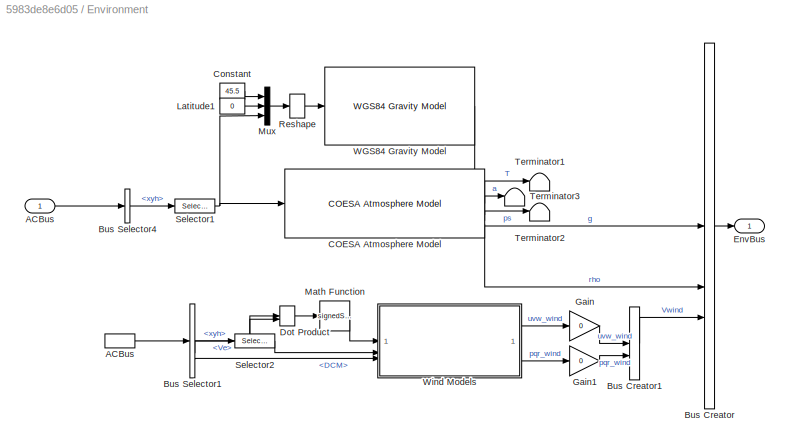
BLOCK [SubSystem] Environment
BLOCK [Inport] Environment/ACBus
BLOCK [InportShadow] Environment/ACBus 
BLOCK [BusCreator] Environment/Bus Creator
  DisplayOption = bar
  InheritFromInputs = on
  Inputs = 3
BLOCK [BusCreator] Environment/Bus Creator1
  DisplayOption = bar
  InheritFromInputs = on
  Inputs = 2
BLOCK [BusSelector] Environment/Bus Selector1
  OutputSignals = Ve,xyh,DCM
BLOCK [BusSelector] Environment/Bus Selector4
  OutputSignals = xyh
BLOCK [Reference] Environment/COESA Atmosphere Model  REF=aerolibatmos2/COESA Atmosphere Model
  SourceBlock = aerolibatmos2/COESA Atmosphere Model
  SourceType = Atmosphere Model
BLOCK [Constant] Environment/Constant
  Value = 45.5
BLOCK [DotProduct] Environment/Dot Product
  OutDataTypeStr = Inherit: Inherit via internal rule
BLOCK [Outport] Environment/EnvBus
BLOCK [Gain] Environment/Gain
  Gain = 0
BLOCK [Gain] Environment/Gain1
  Gain = 0
BLOCK [Constant] Environment/Latitude1
  Value = 0
BLOCK [Sqrt] Environment/Math Function
  AlgorithmType = Newton-Raphson
  Operator = signedSqrt
BLOCK [Mux] Environment/Mux
  DisplayOption = bar
  Inputs = 3
BLOCK [Reshape] Environment/Reshape
BLOCK [Selector] Environment/Selector1
  IndexOptions = Index vector (dialog)
  Indices = [3]
  InputPortWidth = 3
  OutputSizes = 1
BLOCK [Selector] Environment/Selector2
  IndexOptions = Index vector (dialog)
  Indices = [3]
  InputPortWidth = 3
  OutputSizes = 1
BLOCK [Terminator] Environment/Terminator1
BLOCK [Terminator] Environment/Terminator2
BLOCK [Terminator] Environment/Terminator3
BLOCK [Reference] Environment/WGS84 Gravity Model   REF=aerolibobsolete/WGS84 Gravity Model 
  SourceBlock = aerolibobsolete/WGS84 Gravity Model
  SourceType = WGS84 Gravity Model 3D
BLOCK [SubSystem] Environment/Wind Models
BLOCK [Inport] Environment/Wind Models/Airspeed
BLOCK [Inport] Environment/Wind Models/Altitude
  NameLocation = top
  Port = 2
BLOCK [Inport] Environment/Wind Models/DCM
  Port = 3
BLOCK [InportShadow] Environment/Wind Models/DCM 
  Port = 3
BLOCK [Reference] Environment/Wind Models/Discrete Wind Gust Model  REF=aerolibwind2/Discrete Wind Gust Model
  SourceBlock = aerolibwind2/Discrete Wind Gust Model
  SourceType = Discrete Wind Gust Model
BLOCK [Reference] Environment/Wind Models/Dryden Wind Turbulence Model (Continuous (+q -r))  REF=aerolibwind2/Dryden Wind Turbulence Model 
(Continuous (+q -r))
  SourceBlock = aerolibwind2/Dryden Wind Turbulence Model \n(Continuous (+q -r))
  SourceType = Wind Turbulence Model
BLOCK [Sum] Environment/Wind Models/Sum
  InputSameDT = on
  Inputs = +++
  OutDataTypeStr = Inherit: Same as first input
  SaturateOnIntegerOverflow = on
BLOCK [Reference] Environment/Wind Models/Wind Shear Model  REF=aerolibwind2/Wind Shear Model
  SourceBlock = aerolibwind2/Wind Shear Model
  SourceType = Wind Shear Model
BLOCK [Outport] Environment/Wind Models/pg,qg,rg
  Port = 2
BLOCK [Outport] Environment/Wind Models/ug,vg,wg
BLOCK [SubSystem] Pilot
BLOCK [BusCreator] Pilot/Bus Creator
  DisplayOption = bar
  InheritFromInputs = on
  Inputs = 2
BLOCK [SubSystem] Pilot/Input Signal Conditioning
BLOCK [Reference] Pilot/Input Signal Conditioning/Angle Conversion5  REF=aerolibconvert2/Angle Conversion
  SourceBlock = aerolibconvert2/Angle Conversion
  SourceType = Angle Conversion
BLOCK [Constant] Pilot/Input Signal Conditioning/Flaps
  Value = 0
BLOCK [Mux] Pilot/Input Signal Conditioning/Mux1
BLOCK [Mux] Pilot/Input Signal Conditioning/Mux2
  Inputs = 2
BLOCK [Lookup_n-D] Pilot/Input Signal Conditioning/RPM2ManifoldPressure
  BeginIndexSearchUsingPreviousIndexResult = on
  BreakpointsForDimension1 = [0 1800 2300]
  ExtrapMethod = Clip
  IndexSearchMethod = Linear search
  InputPortMap = u0
  NumberOfTableDimensions = 1
  Table = [0 22.5735 26]
BLOCK [Lookup_n-D] Pilot/Input Signal Conditioning/Throttle2RPM
  BeginIndexSearchUsingPreviousIndexResult = on
  BreakpointsForDimension1 = (1/6)*(3+([-3:3]))
  ExtrapMethod = Clip
  IndexSearchMethod = Linear search
  InputPortMap = u0
  NumberOfTableDimensions = 1
  Table = ((1+tanh([-3:3]))/(1+tanh(2.65))-0.0025)*2300
BLOCK [Inport] Pilot/Input Signal Conditioning/aileron
  Port = 2
BLOCK [Inport] Pilot/Input Signal Conditioning/elevator
BLOCK [Inport] Pilot/Input Signal Conditioning/rudder
  Port = 3
BLOCK [Inport] Pilot/Input Signal Conditioning/throttle
  Port = 4
BLOCK [Outport] Pilot/Input Signal Conditioning/uaero
BLOCK [Outport] Pilot/Input Signal Conditioning/uprop
  Port = 2
BLOCK [Outport] Pilot/Pilot
BLOCK [Inport] Pilot/aileron
  Port = 2
BLOCK [Inport] Pilot/elevator
BLOCK [Inport] Pilot/rudder
  Port = 3
BLOCK [Inport] Pilot/throttle
  Port = 4
BLOCK [Scope] Scope
  Floating = off
  IOType = viewer
  NumInputPorts = 1
  ScopeSpecificationString = C++SS(StrPVP('Location','[171, 570, 945, 890]'),StrPVP('Open','off'),MxPVP('AxesTitles',54,'struct(''axes1'',''%<SignalLabel>'')'),StrPVP('ShowDataMarkers','off'),StrPVP('ShowLegends','on'),StrPVP('DataFormat','Array'),StrPVP('MaxDataPoints','7500'),StrPVP('LimitDataPoints','on'),StrPVP('Decimation','1'),StrPVP('BlockParamSampleInput','off'))
BLOCK [Stop] Stop Simulation
BLOCK [Inport] aileron
  Port = 2
BLOCK [Inport] elevator
BLOCK [Scope] phi,theta,psi
  Floating = off
  NumInputPorts = 3
  ScopeSpecificationString = Simulink.scopes.TimeScopeBlockCfg('CurrentConfiguration', extmgr.ConfigurationSet(extmgr.Configuration('Core','General UI',true),extmgr.Configuration('Core','Source UI',true),extmgr.Configuration('Sources','WiredSimulink',true,'DataLoggingVariableName','ScopeData2','DataLoggingSaveFormat','StructureWithTime','DataLoggingDecimation','1','DataLoggingDecimateData',true),extmgr.Configuration('Visuals'...<+3306ch>
BLOCK [Scope] pqr
  Floating = off
  NumInputPorts = 3
  ScopeSpecificationString = Simulink.scopes.TimeScopeBlockCfg('CurrentConfiguration', extmgr.ConfigurationSet(extmgr.Configuration('Core','General UI',true),extmgr.Configuration('Core','Source UI',true),extmgr.Configuration('Sources','WiredSimulink',true,'DataLoggingSaveFormat','StructureWithTime','DataLoggingDecimation','1','DataLoggingDecimateData',true),extmgr.Configuration('Visuals','Time Domain',true,'SerializedDisplays...<+3254ch>
BLOCK [Inport] rudder
  Port = 3
BLOCK [Inport] throttle
  Port = 4
BLOCK [Scope] xyh
  Floating = off
  NumInputPorts = 3
  ScopeSpecificationString = Simulink.scopes.TimeScopeBlockCfg('CurrentConfiguration', extmgr.ConfigurationSet(extmgr.Configuration('Core','General UI',true),extmgr.Configuration('Core','Source UI',true),extmgr.Configuration('Sources','WiredSimulink',true,'DataLoggingVariableName','ScopeData1','DataLoggingSaveFormat','StructureWithTime','DataLoggingDecimation','1','DataLoggingDecimateData',true),extmgr.Configuration('Visuals'...<+3301ch>
ANNOTATION (root): <copyright redacted>
ANNOTATION DeHavilland Beaver Airframe/Aircraft Dynamics/Total Forces and Moments/Engine /eng: dpt
LINE Bus Selector:1 -> Demux:1
LINE Bus Selector:2 -> Demux2:1
LINE Bus Selector:3 -> Demux1:1
LINE Compare To Zero:1 -> Stop Simulation:1
LINE Constant:1 -> Pilot:4
NET DeHavilland Beaver Airframe/Aircraft Dynamics/6DoF (Quaternion):1 -> DeHavilland Beaver Airframe/Aircraft Dynamics/Bus Creator:2, DeHavilland Beaver Airframe/Aircraft Dynamics/Selector1:1
NET DeHavilland Beaver Airframe/Aircraft Dynamics/6DoF (Quaternion):2 -> DeHavilland Beaver Airframe/Aircraft Dynamics/Bus Creator:3, DeHavilland Beaver Airframe/Aircraft Dynamics/xyH:1
LINE DeHavilland Beaver Airframe/Aircraft Dynamics/6DoF (Quaternion):3 -> DeHavilland Beaver Airframe/Aircraft Dynamics/Angle Conversion:1
NET DeHavilland Beaver Airframe/Aircraft Dynamics/6DoF (Quaternion):4 -> DeHavilland Beaver Airframe/Aircraft Dynamics/Bus Creator:6, DeHavilland Beaver Airframe/Aircraft Dynamics/Total Forces and Moments:3
LINE DeHavilland Beaver Airframe/Aircraft Dynamics/6DoF (Quaternion):5 -> DeHavilland Beaver Airframe/Aircraft Dynamics/Bus Creator:7
LINE DeHavilland Beaver Airframe/Aircraft Dynamics/6DoF (Quaternion):6 -> DeHavilland Beaver Airframe/Aircraft Dynamics/Bus Creator:8
LINE DeHavilland Beaver Airframe/Aircraft Dynamics/6DoF (Quaternion):7 -> DeHavilland Beaver Airframe/Aircraft Dynamics/Terminator:1
LINE DeHavilland Beaver Airframe/Aircraft Dynamics/6DoF (Quaternion):8 -> DeHavilland Beaver Airframe/Aircraft Dynamics/Terminator1:1
LINE DeHavilland Beaver Airframe/Aircraft Dynamics/Angle Conversion:1 -> DeHavilland Beaver Airframe/Aircraft Dynamics/Bus Creator:5
LINE DeHavilland Beaver Airframe/Aircraft Dynamics/Bus Creator:1 -> DeHavilland Beaver Airframe/Aircraft Dynamics/AC Bus:1
LINE DeHavilland Beaver Airframe/Aircraft Dynamics/EnvirBus:1 -> DeHavilland Beaver Airframe/Aircraft Dynamics/Total Forces and Moments:1
LINE DeHavilland Beaver Airframe/Aircraft Dynamics/FltParams:1 -> DeHavilland Beaver Airframe/Aircraft Dynamics/Total Forces and Moments:4
LINE DeHavilland Beaver Airframe/Aircraft Dynamics/Hdot:1 -> DeHavilland Beaver Airframe/Aircraft Dynamics/Bus Creator:1
LINE DeHavilland Beaver Airframe/Aircraft Dynamics/Pilot:1 -> DeHavilland Beaver Airframe/Aircraft Dynamics/Total Forces and Moments:2
LINE DeHavilland Beaver Airframe/Aircraft Dynamics/Selector1:1 -> DeHavilland Beaver Airframe/Aircraft Dynamics/Hdot:1
LINE DeHavilland Beaver Airframe/Aircraft Dynamics/Total Forces and Moments/Actuators/Bus Selector2:1 -> DeHavilland Beaver Airframe/Aircraft Dynamics/Total Forces and Moments/Actuators/Demux:1
LINE DeHavilland Beaver Airframe/Aircraft Dynamics/Total Forces and Moments/Actuators/Demux:1 -> DeHavilland Beaver Airframe/Aircraft Dynamics/Total Forces and Moments/Actuators/Mux:1
LINE DeHavilland Beaver Airframe/Aircraft Dynamics/Total Forces and Moments/Actuators/Demux:2 -> DeHavilland Beaver Airframe/Aircraft Dynamics/Total Forces and Moments/Actuators/Mux:2
LINE DeHavilland Beaver Airframe/Aircraft Dynamics/Total Forces and Moments/Actuators/Demux:3 -> DeHavilland Beaver Airframe/Aircraft Dynamics/Total Forces and Moments/Actuators/Mux:3
LINE DeHavilland Beaver Airframe/Aircraft Dynamics/Total Forces and Moments/Actuators/Demux:4 -> DeHavilland Beaver Airframe/Aircraft Dynamics/Total Forces and Moments/Actuators/Mux:4
LINE DeHavilland Beaver Airframe/Aircraft Dynamics/Total Forces and Moments/Actuators/Initial inputs for aero:1 -> DeHavilland Beaver Airframe/Aircraft Dynamics/Total Forces and Moments/Actuators/Sum1:1
LINE DeHavilland Beaver Airframe/Aircraft Dynamics/Total Forces and Moments/Actuators/Mux:1 -> DeHavilland Beaver Airframe/Aircraft Dynamics/Total Forces and Moments/Actuators/Sum1:2
LINE DeHavilland Beaver Airframe/Aircraft Dynamics/Total Forces and Moments/Actuators/Pilot:1 -> DeHavilland Beaver Airframe/Aircraft Dynamics/Total Forces and Moments/Actuators/Bus Selector2:1
LINE DeHavilland Beaver Airframe/Aircraft Dynamics/Total Forces and Moments/Actuators/Sum1:1 -> DeHavilland Beaver Airframe/Aircraft Dynamics/Total Forces and Moments/Actuators/uaero-out:1
LINE DeHavilland Beaver Airframe/Aircraft Dynamics/Total Forces and Moments/Actuators:1 -> DeHavilland Beaver Airframe/Aircraft Dynamics/Total Forces and Moments/Aerodynamics:1
NET DeHavilland Beaver Airframe/Aircraft Dynamics/Total Forces and Moments/Aerodynamics/Actuator Increments/Actuator Deflections:1 -> DeHavilland Beaver Airframe/Aircraft Dynamics/Total Forces and Moments/Aerodynamics/Actuator Increments/Aileron:2, DeHavilland Beaver Airframe/Aircraft Dynamics/Total Forces and Moments/Aerodynamics/Actuator Increments/Elevator:1, DeHavilland Beaver Airframe/Aircraft Dynamics/Total Forces and Moments/Aerodynamics/Actuator Increments/Flap:2, DeHavilland Beaver Airframe/Aircraft Dynamics/Total Forces and Moments/Aerodynamics/Actuator Increments/Rudder:2
LINE DeHavilland Beaver Airframe/Aircraft Dynamics/Total Forces and Moments/Aerodynamics/Actuator Increments/Aileron/Actuators:1 -> DeHavilland Beaver Airframe/Aircraft Dynamics/Total Forces and Moments/Aerodynamics/Actuator Increments/Aileron/Selector1:1
LINE DeHavilland Beaver Airframe/Aircraft Dynamics/Total Forces and Moments/Aerodynamics/Actuator Increments/Aileron/Gain1:1 -> DeHavilland Beaver Airframe/Aircraft Dynamics/Total Forces and Moments/Aerodynamics/Actuator Increments/Aileron/Mux1:1
LINE DeHavilland Beaver Airframe/Aircraft Dynamics/Total Forces and Moments/Aerodynamics/Actuator Increments/Aileron/Gain2:1 -> DeHavilland Beaver Airframe/Aircraft Dynamics/Total Forces and Moments/Aerodynamics/Actuator Increments/Aileron/Mux1:2
LINE DeHavilland Beaver Airframe/Aircraft Dynamics/Total Forces and Moments/Aerodynamics/Actuator Increments/Aileron/Gain3:1 -> DeHavilland Beaver Airframe/Aircraft Dynamics/Total Forces and Moments/Aerodynamics/Actuator Increments/Aileron/Mux1:3
LINE DeHavilland Beaver Airframe/Aircraft Dynamics/Total Forces and Moments/Aerodynamics/Actuator Increments/Aileron/Gain4:1 -> DeHavilland Beaver Airframe/Aircraft Dynamics/Total Forces and Moments/Aerodynamics/Actuator Increments/Aileron/Mux1:6
LINE DeHavilland Beaver Airframe/Aircraft Dynamics/Total Forces and Moments/Aerodynamics/Actuator Increments/Aileron/Gain5:1 -> DeHavilland Beaver Airframe/Aircraft Dynamics/Total Forces and Moments/Aerodynamics/Actuator Increments/Aileron/Mux1:5
LINE DeHavilland Beaver Airframe/Aircraft Dynamics/Total Forces and Moments/Aerodynamics/Actuator Increments/Aileron/Gain6:1 -> DeHavilland Beaver Airframe/Aircraft Dynamics/Total Forces and Moments/Aerodynamics/Actuator Increments/Aileron/Sum1:1
LINE DeHavilland Beaver Airframe/Aircraft Dynamics/Total Forces and Moments/Aerodynamics/Actuator Increments/Aileron/Gain7:1 -> DeHavilland Beaver Airframe/Aircraft Dynamics/Total Forces and Moments/Aerodynamics/Actuator Increments/Aileron/Sum1:2
LINE DeHavilland Beaver Airframe/Aircraft Dynamics/Total Forces and Moments/Aerodynamics/Actuator Increments/Aileron/Mux1:1 -> DeHavilland Beaver Airframe/Aircraft Dynamics/Total Forces and Moments/Aerodynamics/Actuator Increments/Aileron/delCoeff:1
LINE DeHavilland Beaver Airframe/Aircraft Dynamics/Total Forces and Moments/Aerodynamics/Actuator Increments/Aileron/Product4:1 -> DeHavilland Beaver Airframe/Aircraft Dynamics/Total Forces and Moments/Aerodynamics/Actuator Increments/Aileron/Gain7:1
NET DeHavilland Beaver Airframe/Aircraft Dynamics/Total Forces and Moments/Aerodynamics/Actuator Increments/Aileron/Selector1:1 -> DeHavilland Beaver Airframe/Aircraft Dynamics/Total Forces and Moments/Aerodynamics/Actuator Increments/Aileron/Gain1:1, DeHavilland Beaver Airframe/Aircraft Dynamics/Total Forces and Moments/Aerodynamics/Actuator Increments/Aileron/Gain2:1, DeHavilland Beaver Airframe/Aircraft Dynamics/Total Forces and Moments/Aerodynamics/Actuator Increments/Aileron/Gain3:1, DeHavilland Beaver Airframe/Aircraft Dynamics/Total Forces and Moments/Aerodynamics/Actuator Increments/Aileron/Gain4:1, DeHavilland Beaver Airframe/Aircraft Dynamics/Total Forces and Moments/Aerodynamics/Actuator Increments/Aileron/Gain5:1, DeHavilland Beaver Airframe/Aircraft Dynamics/Total Forces and Moments/Aerodynamics/Actuator Increments/Aileron/Gain6:1, DeHavilland Beaver Airframe/Aircraft Dynamics/Total Forces and Moments/Aerodynamics/Actuator Increments/Aileron/Product4:1
LINE DeHavilland Beaver Airframe/Aircraft Dynamics/Total Forces and Moments/Aerodynamics/Actuator Increments/Aileron/Sum1:1 -> DeHavilland Beaver Airframe/Aircraft Dynamics/Total Forces and Moments/Aerodynamics/Actuator Increments/Aileron/Mux1:4
LINE DeHavilland Beaver Airframe/Aircraft Dynamics/Total Forces and Moments/Aerodynamics/Actuator Increments/Aileron/alpha:1 -> DeHavilland Beaver Airframe/Aircraft Dynamics/Total Forces and Moments/Aerodynamics/Actuator Increments/Aileron/Product4:2
LINE DeHavilland Beaver Airframe/Aircraft Dynamics/Total Forces and Moments/Aerodynamics/Actuator Increments/Aileron:1 -> DeHavilland Beaver Airframe/Aircraft Dynamics/Total Forces and Moments/Aerodynamics/Actuator Increments/Sum:1
LINE DeHavilland Beaver Airframe/Aircraft Dynamics/Total Forces and Moments/Aerodynamics/Actuator Increments/Elevator/Actuators:1 -> DeHavilland Beaver Airframe/Aircraft Dynamics/Total Forces and Moments/Aerodynamics/Actuator Increments/Elevator/Selector1:1
NET DeHavilland Beaver Airframe/Aircraft Dynamics/Total Forces and Moments/Aerodynamics/Actuator Increments/Elevator/Beta:1 -> DeHavilland Beaver Airframe/Aircraft Dynamics/Total Forces and Moments/Aerodynamics/Actuator Increments/Elevator/Product4:1, DeHavilland Beaver Airframe/Aircraft Dynamics/Total Forces and Moments/Aerodynamics/Actuator Increments/Elevator/Product4:2
NET DeHavilland Beaver Airframe/Aircraft Dynamics/Total Forces and Moments/Aerodynamics/Actuator Increments/Elevator/Constant1:1 -> DeHavilland Beaver Airframe/Aircraft Dynamics/Total Forces and Moments/Aerodynamics/Actuator Increments/Elevator/Mux1:1, DeHavilland Beaver Airframe/Aircraft Dynamics/Total Forces and Moments/Aerodynamics/Actuator Increments/Elevator/Mux1:2, DeHavilland Beaver Airframe/Aircraft Dynamics/Total Forces and Moments/Aerodynamics/Actuator Increments/Elevator/Mux1:4, DeHavilland Beaver Airframe/Aircraft Dynamics/Total Forces and Moments/Aerodynamics/Actuator Increments/Elevator/Mux1:6
LINE DeHavilland Beaver Airframe/Aircraft Dynamics/Total Forces and Moments/Aerodynamics/Actuator Increments/Elevator/Gain1:1 -> DeHavilland Beaver Airframe/Aircraft Dynamics/Total Forces and Moments/Aerodynamics/Actuator Increments/Elevator/Sum1:2
LINE DeHavilland Beaver Airframe/Aircraft Dynamics/Total Forces and Moments/Aerodynamics/Actuator Increments/Elevator/Gain2:1 -> DeHavilland Beaver Airframe/Aircraft Dynamics/Total Forces and Moments/Aerodynamics/Actuator Increments/Elevator/Sum1:1
LINE DeHavilland Beaver Airframe/Aircraft Dynamics/Total Forces and Moments/Aerodynamics/Actuator Increments/Elevator/Gain3:1 -> DeHavilland Beaver Airframe/Aircraft Dynamics/Total Forces and Moments/Aerodynamics/Actuator Increments/Elevator/Mux1:5
LINE DeHavilland Beaver Airframe/Aircraft Dynamics/Total Forces and Moments/Aerodynamics/Actuator Increments/Elevator/Mux1:1 -> DeHavilland Beaver Airframe/Aircraft Dynamics/Total Forces and Moments/Aerodynamics/Actuator Increments/Elevator/delCoeff:1
LINE DeHavilland Beaver Airframe/Aircraft Dynamics/Total Forces and Moments/Aerodynamics/Actuator Increments/Elevator/Product4:1 -> DeHavilland Beaver Airframe/Aircraft Dynamics/Total Forces and Moments/Aerodynamics/Actuator Increments/Elevator/Gain2:1
NET DeHavilland Beaver Airframe/Aircraft Dynamics/Total Forces and Moments/Aerodynamics/Actuator Increments/Elevator/Selector1:1 -> DeHavilland Beaver Airframe/Aircraft Dynamics/Total Forces and Moments/Aerodynamics/Actuator Increments/Elevator/Gain1:1, DeHavilland Beaver Airframe/Aircraft Dynamics/Total Forces and Moments/Aerodynamics/Actuator Increments/Elevator/Gain3:1, DeHavilland Beaver Airframe/Aircraft Dynamics/Total Forces and Moments/Aerodynamics/Actuator Increments/Elevator/Product4:3
LINE DeHavilland Beaver Airframe/Aircraft Dynamics/Total Forces and Moments/Aerodynamics/Actuator Increments/Elevator/Sum1:1 -> DeHavilland Beaver Airframe/Aircraft Dynamics/Total Forces and Moments/Aerodynamics/Actuator Increments/Elevator/Mux1:3
LINE DeHavilland Beaver Airframe/Aircraft Dynamics/Total Forces and Moments/Aerodynamics/Actuator Increments/Elevator:1 -> DeHavilland Beaver Airframe/Aircraft Dynamics/Total Forces and Moments/Aerodynamics/Actuator Increments/Sum:2
LINE DeHavilland Beaver Airframe/Aircraft Dynamics/Total Forces and Moments/Aerodynamics/Actuator Increments/Flap/Actuators:1 -> DeHavilland Beaver Airframe/Aircraft Dynamics/Total Forces and Moments/Aerodynamics/Actuator Increments/Flap/Selector1:1
NET DeHavilland Beaver Airframe/Aircraft Dynamics/Total Forces and Moments/Aerodynamics/Actuator Increments/Flap/Alpha:1 -> DeHavilland Beaver Airframe/Aircraft Dynamics/Total Forces and Moments/Aerodynamics/Actuator Increments/Flap/Product1:2, DeHavilland Beaver Airframe/Aircraft Dynamics/Total Forces and Moments/Aerodynamics/Actuator Increments/Flap/Product4:2
LINE DeHavilland Beaver Airframe/Aircraft Dynamics/Total Forces and Moments/Aerodynamics/Actuator Increments/Flap/Constant1:1 -> DeHavilland Beaver Airframe/Aircraft Dynamics/Total Forces and Moments/Aerodynamics/Actuator Increments/Flap/Mux1:2
LINE DeHavilland Beaver Airframe/Aircraft Dynamics/Total Forces and Moments/Aerodynamics/Actuator Increments/Flap/Constant2:1 -> DeHavilland Beaver Airframe/Aircraft Dynamics/Total Forces and Moments/Aerodynamics/Actuator Increments/Flap/Mux1:4
LINE DeHavilland Beaver Airframe/Aircraft Dynamics/Total Forces and Moments/Aerodynamics/Actuator Increments/Flap/Constant3:1 -> DeHavilland Beaver Airframe/Aircraft Dynamics/Total Forces and Moments/Aerodynamics/Actuator Increments/Flap/Mux1:6
LINE DeHavilland Beaver Airframe/Aircraft Dynamics/Total Forces and Moments/Aerodynamics/Actuator Increments/Flap/Gain1:1 -> DeHavilland Beaver Airframe/Aircraft Dynamics/Total Forces and Moments/Aerodynamics/Actuator Increments/Flap/Sum1:1
LINE DeHavilland Beaver Airframe/Aircraft Dynamics/Total Forces and Moments/Aerodynamics/Actuator Increments/Flap/Gain2:1 -> DeHavilland Beaver Airframe/Aircraft Dynamics/Total Forces and Moments/Aerodynamics/Actuator Increments/Flap/Sum1:2
LINE DeHavilland Beaver Airframe/Aircraft Dynamics/Total Forces and Moments/Aerodynamics/Actuator Increments/Flap/Gain3:1 -> DeHavilland Beaver Airframe/Aircraft Dynamics/Total Forces and Moments/Aerodynamics/Actuator Increments/Flap/Sum2:1
LINE DeHavilland Beaver Airframe/Aircraft Dynamics/Total Forces and Moments/Aerodynamics/Actuator Increments/Flap/Gain4:1 -> DeHavilland Beaver Airframe/Aircraft Dynamics/Total Forces and Moments/Aerodynamics/Actuator Increments/Flap/Sum2:2
LINE DeHavilland Beaver Airframe/Aircraft Dynamics/Total Forces and Moments/Aerodynamics/Actuator Increments/Flap/Gain5:1 -> DeHavilland Beaver Airframe/Aircraft Dynamics/Total Forces and Moments/Aerodynamics/Actuator Increments/Flap/Mux1:5
LINE DeHavilland Beaver Airframe/Aircraft Dynamics/Total Forces and Moments/Aerodynamics/Actuator Increments/Flap/Mux1:1 -> DeHavilland Beaver Airframe/Aircraft Dynamics/Total Forces and Moments/Aerodynamics/Actuator Increments/Flap/delCoeff:1
LINE DeHavilland Beaver Airframe/Aircraft Dynamics/Total Forces and Moments/Aerodynamics/Actuator Increments/Flap/Product1:1 -> DeHavilland Beaver Airframe/Aircraft Dynamics/Total Forces and Moments/Aerodynamics/Actuator Increments/Flap/Gain4:1
LINE DeHavilland Beaver Airframe/Aircraft Dynamics/Total Forces and Moments/Aerodynamics/Actuator Increments/Flap/Product4:1 -> DeHavilland Beaver Airframe/Aircraft Dynamics/Total Forces and Moments/Aerodynamics/Actuator Increments/Flap/Gain2:1
NET DeHavilland Beaver Airframe/Aircraft Dynamics/Total Forces and Moments/Aerodynamics/Actuator Increments/Flap/Selector1:1 -> DeHavilland Beaver Airframe/Aircraft Dynamics/Total Forces and Moments/Aerodynamics/Actuator Increments/Flap/Gain1:1, DeHavilland Beaver Airframe/Aircraft Dynamics/Total Forces and Moments/Aerodynamics/Actuator Increments/Flap/Gain3:1, DeHavilland Beaver Airframe/Aircraft Dynamics/Total Forces and Moments/Aerodynamics/Actuator Increments/Flap/Gain5:1, DeHavilland Beaver Airframe/Aircraft Dynamics/Total Forces and Moments/Aerodynamics/Actuator Increments/Flap/Product1:1, DeHavilland Beaver Airframe/Aircraft Dynamics/Total Forces and Moments/Aerodynamics/Actuator Increments/Flap/Product4:1
LINE DeHavilland Beaver Airframe/Aircraft Dynamics/Total Forces and Moments/Aerodynamics/Actuator Increments/Flap/Sum1:1 -> DeHavilland Beaver Airframe/Aircraft Dynamics/Total Forces and Moments/Aerodynamics/Actuator Increments/Flap/Mux1:1
LINE DeHavilland Beaver Airframe/Aircraft Dynamics/Total Forces and Moments/Aerodynamics/Actuator Increments/Flap/Sum2:1 -> DeHavilland Beaver Airframe/Aircraft Dynamics/Total Forces and Moments/Aerodynamics/Actuator Increments/Flap/Mux1:3
LINE DeHavilland Beaver Airframe/Aircraft Dynamics/Total Forces and Moments/Aerodynamics/Actuator Increments/Flap:1 -> DeHavilland Beaver Airframe/Aircraft Dynamics/Total Forces and Moments/Aerodynamics/Actuator Increments/Sum:4
LINE DeHavilland Beaver Airframe/Aircraft Dynamics/Total Forces and Moments/Aerodynamics/Actuator Increments/Rudder/Actuators:1 -> DeHavilland Beaver Airframe/Aircraft Dynamics/Total Forces and Moments/Aerodynamics/Actuator Increments/Rudder/Selector1:1
LINE DeHavilland Beaver Airframe/Aircraft Dynamics/Total Forces and Moments/Aerodynamics/Actuator Increments/Rudder/Alpha:1 -> DeHavilland Beaver Airframe/Aircraft Dynamics/Total Forces and Moments/Aerodynamics/Actuator Increments/Rudder/Product1:2
LINE DeHavilland Beaver Airframe/Aircraft Dynamics/Total Forces and Moments/Aerodynamics/Actuator Increments/Rudder/Constant1:1 -> DeHavilland Beaver Airframe/Aircraft Dynamics/Total Forces and Moments/Aerodynamics/Actuator Increments/Rudder/Mux1:3
LINE DeHavilland Beaver Airframe/Aircraft Dynamics/Total Forces and Moments/Aerodynamics/Actuator Increments/Rudder/Constant2:1 -> DeHavilland Beaver Airframe/Aircraft Dynamics/Total Forces and Moments/Aerodynamics/Actuator Increments/Rudder/Mux1:5
LINE DeHavilland Beaver Airframe/Aircraft Dynamics/Total Forces and Moments/Aerodynamics/Actuator Increments/Rudder/Gain1:1 -> DeHavilland Beaver Airframe/Aircraft Dynamics/Total Forces and Moments/Aerodynamics/Actuator Increments/Rudder/Mux1:4
LINE DeHavilland Beaver Airframe/Aircraft Dynamics/Total Forces and Moments/Aerodynamics/Actuator Increments/Rudder/Gain2:1 -> DeHavilland Beaver Airframe/Aircraft Dynamics/Total Forces and Moments/Aerodynamics/Actuator Increments/Rudder/Mux1:6
LINE DeHavilland Beaver Airframe/Aircraft Dynamics/Total Forces and Moments/Aerodynamics/Actuator Increments/Rudder/Gain3:1 -> DeHavilland Beaver Airframe/Aircraft Dynamics/Total Forces and Moments/Aerodynamics/Actuator Increments/Rudder/Sum1:2
LINE DeHavilland Beaver Airframe/Aircraft Dynamics/Total Forces and Moments/Aerodynamics/Actuator Increments/Rudder/Gain4:1 -> DeHavilland Beaver Airframe/Aircraft Dynamics/Total Forces and Moments/Aerodynamics/Actuator Increments/Rudder/Sum1:1
LINE DeHavilland Beaver Airframe/Aircraft Dynamics/Total Forces and Moments/Aerodynamics/Actuator Increments/Rudder/Gain5:1 -> DeHavilland Beaver Airframe/Aircraft Dynamics/Total Forces and Moments/Aerodynamics/Actuator Increments/Rudder/Mux1:1
LINE DeHavilland Beaver Airframe/Aircraft Dynamics/Total Forces and Moments/Aerodynamics/Actuator Increments/Rudder/Mux1:1 -> DeHavilland Beaver Airframe/Aircraft Dynamics/Total Forces and Moments/Aerodynamics/Actuator Increments/Rudder/delCoeff:1
LINE DeHavilland Beaver Airframe/Aircraft Dynamics/Total Forces and Moments/Aerodynamics/Actuator Increments/Rudder/Product1:1 -> DeHavilland Beaver Airframe/Aircraft Dynamics/Total Forces and Moments/Aerodynamics/Actuator Increments/Rudder/Gain3:1
NET DeHavilland Beaver Airframe/Aircraft Dynamics/Total Forces and Moments/Aerodynamics/Actuator Increments/Rudder/Selector1:1 -> DeHavilland Beaver Airframe/Aircraft Dynamics/Total Forces and Moments/Aerodynamics/Actuator Increments/Rudder/Gain1:1, DeHavilland Beaver Airframe/Aircraft Dynamics/Total Forces and Moments/Aerodynamics/Actuator Increments/Rudder/Gain2:1, DeHavilland Beaver Airframe/Aircraft Dynamics/Total Forces and Moments/Aerodynamics/Actuator Increments/Rudder/Gain4:1, DeHavilland Beaver Airframe/Aircraft Dynamics/Total Forces and Moments/Aerodynamics/Actuator Increments/Rudder/Gain5:1, DeHavilland Beaver Airframe/Aircraft Dynamics/Total Forces and Moments/Aerodynamics/Actuator Increments/Rudder/Product1:1
LINE DeHavilland Beaver Airframe/Aircraft Dynamics/Total Forces and Moments/Aerodynamics/Actuator Increments/Rudder/Sum1:1 -> DeHavilland Beaver Airframe/Aircraft Dynamics/Total Forces and Moments/Aerodynamics/Actuator Increments/Rudder/Mux1:2
LINE DeHavilland Beaver Airframe/Aircraft Dynamics/Total Forces and Moments/Aerodynamics/Actuator Increments/Rudder:1 -> DeHavilland Beaver Airframe/Aircraft Dynamics/Total Forces and Moments/Aerodynamics/Actuator Increments/Sum:3
LINE DeHavilland Beaver Airframe/Aircraft Dynamics/Total Forces and Moments/Aerodynamics/Actuator Increments/Sum:1 -> DeHavilland Beaver Airframe/Aircraft Dynamics/Total Forces and Moments/Aerodynamics/Actuator Increments/Coefficients:1
NET DeHavilland Beaver Airframe/Aircraft Dynamics/Total Forces and Moments/Aerodynamics/Actuator Increments/alpha:1 -> DeHavilland Beaver Airframe/Aircraft Dynamics/Total Forces and Moments/Aerodynamics/Actuator Increments/Aileron:1, DeHavilland Beaver Airframe/Aircraft Dynamics/Total Forces and Moments/Aerodynamics/Actuator Increments/Flap:1, DeHavilland Beaver Airframe/Aircraft Dynamics/Total Forces and Moments/Aerodynamics/Actuator Increments/Rudder:1
LINE DeHavilland Beaver Airframe/Aircraft Dynamics/Total Forces and Moments/Aerodynamics/Actuator Increments/beta:1 -> DeHavilland Beaver Airframe/Aircraft Dynamics/Total Forces and Moments/Aerodynamics/Actuator Increments/Elevator:2
LINE DeHavilland Beaver Airframe/Aircraft Dynamics/Total Forces and Moments/Aerodynamics/Actuator Increments:1 -> DeHavilland Beaver Airframe/Aircraft Dynamics/Total Forces and Moments/Aerodynamics/Sum:2
LINE DeHavilland Beaver Airframe/Aircraft Dynamics/Total Forces and Moments/Aerodynamics/Body Rate Damping/Demux:1 -> DeHavilland Beaver Airframe/Aircraft Dynamics/Total Forces and Moments/Aerodynamics/Body Rate Damping/Product:2
LINE DeHavilland Beaver Airframe/Aircraft Dynamics/Total Forces and Moments/Aerodynamics/Body Rate Damping/Demux:2 -> DeHavilland Beaver Airframe/Aircraft Dynamics/Total Forces and Moments/Aerodynamics/Body Rate Damping/Product1:2
LINE DeHavilland Beaver Airframe/Aircraft Dynamics/Total Forces and Moments/Aerodynamics/Body Rate Damping/Demux:3 -> DeHavilland Beaver Airframe/Aircraft Dynamics/Total Forces and Moments/Aerodynamics/Body Rate Damping/Product2:2
LINE DeHavilland Beaver Airframe/Aircraft Dynamics/Total Forces and Moments/Aerodynamics/Body Rate Damping/Product1:1 -> DeHavilland Beaver Airframe/Aircraft Dynamics/Total Forces and Moments/Aerodynamics/Body Rate Damping/Reference Length:1
LINE DeHavilland Beaver Airframe/Aircraft Dynamics/Total Forces and Moments/Aerodynamics/Body Rate Damping/Product2:1 -> DeHavilland Beaver Airframe/Aircraft Dynamics/Total Forces and Moments/Aerodynamics/Body Rate Damping/Reference Span :1
LINE DeHavilland Beaver Airframe/Aircraft Dynamics/Total Forces and Moments/Aerodynamics/Body Rate Damping/Product3:1 -> DeHavilland Beaver Airframe/Aircraft Dynamics/Total Forces and Moments/Aerodynamics/Body Rate Damping/Coefficients:1
LINE DeHavilland Beaver Airframe/Aircraft Dynamics/Total Forces and Moments/Aerodynamics/Body Rate Damping/Product:1 -> DeHavilland Beaver Airframe/Aircraft Dynamics/Total Forces and Moments/Aerodynamics/Body Rate Damping/Reference Span:1
LINE DeHavilland Beaver Airframe/Aircraft Dynamics/Total Forces and Moments/Aerodynamics/Body Rate Damping/Reference Length:1 -> DeHavilland Beaver Airframe/Aircraft Dynamics/Total Forces and Moments/Aerodynamics/Body Rate Damping/Sum1:2
LINE DeHavilland Beaver Airframe/Aircraft Dynamics/Total Forces and Moments/Aerodynamics/Body Rate Damping/Reference Span :1 -> DeHavilland Beaver Airframe/Aircraft Dynamics/Total Forces and Moments/Aerodynamics/Body Rate Damping/Sum1:3
LINE DeHavilland Beaver Airframe/Aircraft Dynamics/Total Forces and Moments/Aerodynamics/Body Rate Damping/Reference Span:1 -> DeHavilland Beaver Airframe/Aircraft Dynamics/Total Forces and Moments/Aerodynamics/Body Rate Damping/Sum1:1
LINE DeHavilland Beaver Airframe/Aircraft Dynamics/Total Forces and Moments/Aerodynamics/Body Rate Damping/Sum1:1 -> DeHavilland Beaver Airframe/Aircraft Dynamics/Total Forces and Moments/Aerodynamics/Body Rate Damping/Product3:1
LINE DeHavilland Beaver Airframe/Aircraft Dynamics/Total Forces and Moments/Aerodynamics/Body Rate Damping/V:1 -> DeHavilland Beaver Airframe/Aircraft Dynamics/Total Forces and Moments/Aerodynamics/Body Rate Damping/Product3:2
LINE DeHavilland Beaver Airframe/Aircraft Dynamics/Total Forces and Moments/Aerodynamics/Body Rate Damping/p,q,r:1 -> DeHavilland Beaver Airframe/Aircraft Dynamics/Total Forces and Moments/Aerodynamics/Body Rate Damping/Demux:1
NET DeHavilland Beaver Airframe/Aircraft Dynamics/Total Forces and Moments/Aerodynamics/Body Rate Damping/p/Constant1:1 -> DeHavilland Beaver Airframe/Aircraft Dynamics/Total Forces and Moments/Aerodynamics/Body Rate Damping/p/Mux1:1, DeHavilland Beaver Airframe/Aircraft Dynamics/Total Forces and Moments/Aerodynamics/Body Rate Damping/p/Mux1:3, DeHavilland Beaver Airframe/Aircraft Dynamics/Total Forces and Moments/Aerodynamics/Body Rate Damping/p/Mux1:5
LINE DeHavilland Beaver Airframe/Aircraft Dynamics/Total Forces and Moments/Aerodynamics/Body Rate Damping/p/Constant2:1 -> DeHavilland Beaver Airframe/Aircraft Dynamics/Total Forces and Moments/Aerodynamics/Body Rate Damping/p/Mux1:2
LINE DeHavilland Beaver Airframe/Aircraft Dynamics/Total Forces and Moments/Aerodynamics/Body Rate Damping/p/Constant3:1 -> DeHavilland Beaver Airframe/Aircraft Dynamics/Total Forces and Moments/Aerodynamics/Body Rate Damping/p/Mux1:4
LINE DeHavilland Beaver Airframe/Aircraft Dynamics/Total Forces and Moments/Aerodynamics/Body Rate Damping/p/Constant4:1 -> DeHavilland Beaver Airframe/Aircraft Dynamics/Total Forces and Moments/Aerodynamics/Body Rate Damping/p/Mux1:6
LINE DeHavilland Beaver Airframe/Aircraft Dynamics/Total Forces and Moments/Aerodynamics/Body Rate Damping/p/Mux1:1 -> DeHavilland Beaver Airframe/Aircraft Dynamics/Total Forces and Moments/Aerodynamics/Body Rate Damping/p/delCoeff:1
LINE DeHavilland Beaver Airframe/Aircraft Dynamics/Total Forces and Moments/Aerodynamics/Body Rate Damping/p:1 -> DeHavilland Beaver Airframe/Aircraft Dynamics/Total Forces and Moments/Aerodynamics/Body Rate Damping/Product:1
NET DeHavilland Beaver Airframe/Aircraft Dynamics/Total Forces and Moments/Aerodynamics/Body Rate Damping/q/Constant1:1 -> DeHavilland Beaver Airframe/Aircraft Dynamics/Total Forces and Moments/Aerodynamics/Body Rate Damping/q/Mux1:2, DeHavilland Beaver Airframe/Aircraft Dynamics/Total Forces and Moments/Aerodynamics/Body Rate Damping/q/Mux1:4
LINE DeHavilland Beaver Airframe/Aircraft Dynamics/Total Forces and Moments/Aerodynamics/Body Rate Damping/q/Constant2:1 -> DeHavilland Beaver Airframe/Aircraft Dynamics/Total Forces and Moments/Aerodynamics/Body Rate Damping/q/Mux1:3
LINE DeHavilland Beaver Airframe/Aircraft Dynamics/Total Forces and Moments/Aerodynamics/Body Rate Damping/q/Constant3:1 -> DeHavilland Beaver Airframe/Aircraft Dynamics/Total Forces and Moments/Aerodynamics/Body Rate Damping/q/Mux1:1
LINE DeHavilland Beaver Airframe/Aircraft Dynamics/Total Forces and Moments/Aerodynamics/Body Rate Damping/q/Constant4:1 -> DeHavilland Beaver Airframe/Aircraft Dynamics/Total Forces and Moments/Aerodynamics/Body Rate Damping/q/Mux1:5
LINE DeHavilland Beaver Airframe/Aircraft Dynamics/Total Forces and Moments/Aerodynamics/Body Rate Damping/q/Constant5:1 -> DeHavilland Beaver Airframe/Aircraft Dynamics/Total Forces and Moments/Aerodynamics/Body Rate Damping/q/Mux1:6
LINE DeHavilland Beaver Airframe/Aircraft Dynamics/Total Forces and Moments/Aerodynamics/Body Rate Damping/q/Mux1:1 -> DeHavilland Beaver Airframe/Aircraft Dynamics/Total Forces and Moments/Aerodynamics/Body Rate Damping/q/delCoeff:1
LINE DeHavilland Beaver Airframe/Aircraft Dynamics/Total Forces and Moments/Aerodynamics/Body Rate Damping/q:1 -> DeHavilland Beaver Airframe/Aircraft Dynamics/Total Forces and Moments/Aerodynamics/Body Rate Damping/Product1:1
LINE DeHavilland Beaver Airframe/Aircraft Dynamics/Total Forces and Moments/Aerodynamics/Body Rate Damping/r/Constant1:1 -> DeHavilland Beaver Airframe/Aircraft Dynamics/Total Forces and Moments/Aerodynamics/Body Rate Damping/r/Mux1:2
LINE DeHavilland Beaver Airframe/Aircraft Dynamics/Total Forces and Moments/Aerodynamics/Body Rate Damping/r/Constant2:1 -> DeHavilland Beaver Airframe/Aircraft Dynamics/Total Forces and Moments/Aerodynamics/Body Rate Damping/r/Mux1:4
LINE DeHavilland Beaver Airframe/Aircraft Dynamics/Total Forces and Moments/Aerodynamics/Body Rate Damping/r/Constant3:1 -> DeHavilland Beaver Airframe/Aircraft Dynamics/Total Forces and Moments/Aerodynamics/Body Rate Damping/r/Mux1:5
LINE DeHavilland Beaver Airframe/Aircraft Dynamics/Total Forces and Moments/Aerodynamics/Body Rate Damping/r/Constant4:1 -> DeHavilland Beaver Airframe/Aircraft Dynamics/Total Forces and Moments/Aerodynamics/Body Rate Damping/r/Mux1:6
NET DeHavilland Beaver Airframe/Aircraft Dynamics/Total Forces and Moments/Aerodynamics/Body Rate Damping/r/Constant:1 -> DeHavilland Beaver Airframe/Aircraft Dynamics/Total Forces and Moments/Aerodynamics/Body Rate Damping/r/Mux1:1, DeHavilland Beaver Airframe/Aircraft Dynamics/Total Forces and Moments/Aerodynamics/Body Rate Damping/r/Mux1:3
LINE DeHavilland Beaver Airframe/Aircraft Dynamics/Total Forces and Moments/Aerodynamics/Body Rate Damping/r/Mux1:1 -> DeHavilland Beaver Airframe/Aircraft Dynamics/Total Forces and Moments/Aerodynamics/Body Rate Damping/r/delCoeff:1
LINE DeHavilland Beaver Airframe/Aircraft Dynamics/Total Forces and Moments/Aerodynamics/Body Rate Damping/r:1 -> DeHavilland Beaver Airframe/Aircraft Dynamics/Total Forces and Moments/Aerodynamics/Body Rate Damping/Product2:1
LINE DeHavilland Beaver Airframe/Aircraft Dynamics/Total Forces and Moments/Aerodynamics/Body Rate Damping:1 -> DeHavilland Beaver Airframe/Aircraft Dynamics/Total Forces and Moments/Aerodynamics/Sum:3
NET DeHavilland Beaver Airframe/Aircraft Dynamics/Total Forces and Moments/Aerodynamics/Bus Selector1:1 -> DeHavilland Beaver Airframe/Aircraft Dynamics/Total Forces and Moments/Aerodynamics/Actuator Increments:1, DeHavilland Beaver Airframe/Aircraft Dynamics/Total Forces and Moments/Aerodynamics/Datum Coefficients:1
NET DeHavilland Beaver Airframe/Aircraft Dynamics/Total Forces and Moments/Aerodynamics/Bus Selector1:2 -> DeHavilland Beaver Airframe/Aircraft Dynamics/Total Forces and Moments/Aerodynamics/Actuator Increments:2, DeHavilland Beaver Airframe/Aircraft Dynamics/Total Forces and Moments/Aerodynamics/Datum Coefficients:2
LINE DeHavilland Beaver Airframe/Aircraft Dynamics/Total Forces and Moments/Aerodynamics/Bus Selector2:1 -> DeHavilland Beaver Airframe/Aircraft Dynamics/Total Forces and Moments/Aerodynamics/Body Rate Damping:1
LINE DeHavilland Beaver Airframe/Aircraft Dynamics/Total Forces and Moments/Aerodynamics/Bus Selector2:2 -> DeHavilland Beaver Airframe/Aircraft Dynamics/Total Forces and Moments/Aerodynamics/Body Rate Damping:2
LINE DeHavilland Beaver Airframe/Aircraft Dynamics/Total Forces and Moments/Aerodynamics/Datum Coefficients/Constant:1 -> DeHavilland Beaver Airframe/Aircraft Dynamics/Total Forces and Moments/Aerodynamics/Datum Coefficients/Sum4:2
LINE DeHavilland Beaver Airframe/Aircraft Dynamics/Total Forces and Moments/Aerodynamics/Datum Coefficients/Gain10:1 -> DeHavilland Beaver Airframe/Aircraft Dynamics/Total Forces and Moments/Aerodynamics/Datum Coefficients/Sum3:2
LINE DeHavilland Beaver Airframe/Aircraft Dynamics/Total Forces and Moments/Aerodynamics/Datum Coefficients/Gain11:1 -> DeHavilland Beaver Airframe/Aircraft Dynamics/Total Forces and Moments/Aerodynamics/Datum Coefficients/Sum3:3
LINE DeHavilland Beaver Airframe/Aircraft Dynamics/Total Forces and Moments/Aerodynamics/Datum Coefficients/Gain1:1 -> DeHavilland Beaver Airframe/Aircraft Dynamics/Total Forces and Moments/Aerodynamics/Datum Coefficients/Sum:2
LINE DeHavilland Beaver Airframe/Aircraft Dynamics/Total Forces and Moments/Aerodynamics/Datum Coefficients/Gain2:1 -> DeHavilland Beaver Airframe/Aircraft Dynamics/Total Forces and Moments/Aerodynamics/Datum Coefficients/Sum:3
LINE DeHavilland Beaver Airframe/Aircraft Dynamics/Total Forces and Moments/Aerodynamics/Datum Coefficients/Gain3:1 -> DeHavilland Beaver Airframe/Aircraft Dynamics/Total Forces and Moments/Aerodynamics/Datum Coefficients/Mux1:2
LINE DeHavilland Beaver Airframe/Aircraft Dynamics/Total Forces and Moments/Aerodynamics/Datum Coefficients/Gain4:1 -> DeHavilland Beaver Airframe/Aircraft Dynamics/Total Forces and Moments/Aerodynamics/Datum Coefficients/Sum1:2
LINE DeHavilland Beaver Airframe/Aircraft Dynamics/Total Forces and Moments/Aerodynamics/Datum Coefficients/Gain5:1 -> DeHavilland Beaver Airframe/Aircraft Dynamics/Total Forces and Moments/Aerodynamics/Datum Coefficients/Sum1:1
LINE DeHavilland Beaver Airframe/Aircraft Dynamics/Total Forces and Moments/Aerodynamics/Datum Coefficients/Gain6:1 -> DeHavilland Beaver Airframe/Aircraft Dynamics/Total Forces and Moments/Aerodynamics/Datum Coefficients/Mux1:4
LINE DeHavilland Beaver Airframe/Aircraft Dynamics/Total Forces and Moments/Aerodynamics/Datum Coefficients/Gain7:1 -> DeHavilland Beaver Airframe/Aircraft Dynamics/Total Forces and Moments/Aerodynamics/Datum Coefficients/Sum2:1
LINE DeHavilland Beaver Airframe/Aircraft Dynamics/Total Forces and Moments/Aerodynamics/Datum Coefficients/Gain8:1 -> DeHavilland Beaver Airframe/Aircraft Dynamics/Total Forces and Moments/Aerodynamics/Datum Coefficients/Sum2:2
LINE DeHavilland Beaver Airframe/Aircraft Dynamics/Total Forces and Moments/Aerodynamics/Datum Coefficients/Gain9:1 -> DeHavilland Beaver Airframe/Aircraft Dynamics/Total Forces and Moments/Aerodynamics/Datum Coefficients/Sum3:1
LINE DeHavilland Beaver Airframe/Aircraft Dynamics/Total Forces and Moments/Aerodynamics/Datum Coefficients/Gain:1 -> DeHavilland Beaver Airframe/Aircraft Dynamics/Total Forces and Moments/Aerodynamics/Datum Coefficients/Sum:1
LINE DeHavilland Beaver Airframe/Aircraft Dynamics/Total Forces and Moments/Aerodynamics/Datum Coefficients/Mux1:1 -> DeHavilland Beaver Airframe/Aircraft Dynamics/Total Forces and Moments/Aerodynamics/Datum Coefficients/Sum4:1
NET DeHavilland Beaver Airframe/Aircraft Dynamics/Total Forces and Moments/Aerodynamics/Datum Coefficients/Product1:1 -> DeHavilland Beaver Airframe/Aircraft Dynamics/Total Forces and Moments/Aerodynamics/Datum Coefficients/Gain2:1, DeHavilland Beaver Airframe/Aircraft Dynamics/Total Forces and Moments/Aerodynamics/Datum Coefficients/Gain5:1
NET DeHavilland Beaver Airframe/Aircraft Dynamics/Total Forces and Moments/Aerodynamics/Datum Coefficients/Product2:1 -> DeHavilland Beaver Airframe/Aircraft Dynamics/Total Forces and Moments/Aerodynamics/Datum Coefficients/Gain11:1, DeHavilland Beaver Airframe/Aircraft Dynamics/Total Forces and Moments/Aerodynamics/Datum Coefficients/Product3:1
LINE DeHavilland Beaver Airframe/Aircraft Dynamics/Total Forces and Moments/Aerodynamics/Datum Coefficients/Product3:1 -> DeHavilland Beaver Airframe/Aircraft Dynamics/Total Forces and Moments/Aerodynamics/Datum Coefficients/Gain8:1
NET DeHavilland Beaver Airframe/Aircraft Dynamics/Total Forces and Moments/Aerodynamics/Datum Coefficients/Product4:1 -> DeHavilland Beaver Airframe/Aircraft Dynamics/Total Forces and Moments/Aerodynamics/Datum Coefficients/Gain10:1, DeHavilland Beaver Airframe/Aircraft Dynamics/Total Forces and Moments/Aerodynamics/Datum Coefficients/Gain1:1, DeHavilland Beaver Airframe/Aircraft Dynamics/Total Forces and Moments/Aerodynamics/Datum Coefficients/Product1:1
LINE DeHavilland Beaver Airframe/Aircraft Dynamics/Total Forces and Moments/Aerodynamics/Datum Coefficients/Sum1:1 -> DeHavilland Beaver Airframe/Aircraft Dynamics/Total Forces and Moments/Aerodynamics/Datum Coefficients/Mux1:3
LINE DeHavilland Beaver Airframe/Aircraft Dynamics/Total Forces and Moments/Aerodynamics/Datum Coefficients/Sum2:1 -> DeHavilland Beaver Airframe/Aircraft Dynamics/Total Forces and Moments/Aerodynamics/Datum Coefficients/Mux1:6
LINE DeHavilland Beaver Airframe/Aircraft Dynamics/Total Forces and Moments/Aerodynamics/Datum Coefficients/Sum3:1 -> DeHavilland Beaver Airframe/Aircraft Dynamics/Total Forces and Moments/Aerodynamics/Datum Coefficients/Mux1:5
LINE DeHavilland Beaver Airframe/Aircraft Dynamics/Total Forces and Moments/Aerodynamics/Datum Coefficients/Sum4:1 -> DeHavilland Beaver Airframe/Aircraft Dynamics/Total Forces and Moments/Aerodynamics/Datum Coefficients/Coefficients:1
LINE DeHavilland Beaver Airframe/Aircraft Dynamics/Total Forces and Moments/Aerodynamics/Datum Coefficients/Sum:1 -> DeHavilland Beaver Airframe/Aircraft Dynamics/Total Forces and Moments/Aerodynamics/Datum Coefficients/Mux1:1
NET DeHavilland Beaver Airframe/Aircraft Dynamics/Total Forces and Moments/Aerodynamics/Datum Coefficients/alpha:1 -> DeHavilland Beaver Airframe/Aircraft Dynamics/Total Forces and Moments/Aerodynamics/Datum Coefficients/Gain4:1, DeHavilland Beaver Airframe/Aircraft Dynamics/Total Forces and Moments/Aerodynamics/Datum Coefficients/Gain9:1, DeHavilland Beaver Airframe/Aircraft Dynamics/Total Forces and Moments/Aerodynamics/Datum Coefficients/Gain:1, DeHavilland Beaver Airframe/Aircraft Dynamics/Total Forces and Moments/Aerodynamics/Datum Coefficients/Product1:2, DeHavilland Beaver Airframe/Aircraft Dynamics/Total Forces and Moments/Aerodynamics/Datum Coefficients/Product4:1, DeHavilland Beaver Airframe/Aircraft Dynamics/Total Forces and Moments/Aerodynamics/Datum Coefficients/Product4:2
NET DeHavilland Beaver Airframe/Aircraft Dynamics/Total Forces and Moments/Aerodynamics/Datum Coefficients/beta:1 -> DeHavilland Beaver Airframe/Aircraft Dynamics/Total Forces and Moments/Aerodynamics/Datum Coefficients/Gain3:1, DeHavilland Beaver Airframe/Aircraft Dynamics/Total Forces and Moments/Aerodynamics/Datum Coefficients/Gain6:1, DeHavilland Beaver Airframe/Aircraft Dynamics/Total Forces and Moments/Aerodynamics/Datum Coefficients/Gain7:1, DeHavilland Beaver Airframe/Aircraft Dynamics/Total Forces and Moments/Aerodynamics/Datum Coefficients/Product2:1, DeHavilland Beaver Airframe/Aircraft Dynamics/Total Forces and Moments/Aerodynamics/Datum Coefficients/Product2:2, DeHavilland Beaver Airframe/Aircraft Dynamics/Total Forces and Moments/Aerodynamics/Datum Coefficients/Product3:2
LINE DeHavilland Beaver Airframe/Aircraft Dynamics/Total Forces and Moments/Aerodynamics/Datum Coefficients:1 -> DeHavilland Beaver Airframe/Aircraft Dynamics/Total Forces and Moments/Aerodynamics/Sum:1
NET DeHavilland Beaver Airframe/Aircraft Dynamics/Total Forces and Moments/Aerodynamics/FltParams:1 -> DeHavilland Beaver Airframe/Aircraft Dynamics/Total Forces and Moments/Aerodynamics/Bus Selector1:1, DeHavilland Beaver Airframe/Aircraft Dynamics/Total Forces and Moments/Aerodynamics/Bus Selector2:1
LINE DeHavilland Beaver Airframe/Aircraft Dynamics/Total Forces and Moments/Aerodynamics/Sum:1 -> DeHavilland Beaver Airframe/Aircraft Dynamics/Total Forces and Moments/Aerodynamics/Aero Coefficients:1
LINE DeHavilland Beaver Airframe/Aircraft Dynamics/Total Forces and Moments/Aerodynamics/Uaero:1 -> DeHavilland Beaver Airframe/Aircraft Dynamics/Total Forces and Moments/Aerodynamics/Actuator Increments:3
LINE DeHavilland Beaver Airframe/Aircraft Dynamics/Total Forces and Moments/Aerodynamics:1 -> DeHavilland Beaver Airframe/Aircraft Dynamics/Total Forces and Moments/Forces and Moments:1
LINE DeHavilland Beaver Airframe/Aircraft Dynamics/Total Forces and Moments/Bus Selector4:1 -> DeHavilland Beaver Airframe/Aircraft Dynamics/Total Forces and Moments/Engine :3
LINE DeHavilland Beaver Airframe/Aircraft Dynamics/Total Forces and Moments/Bus Selector4:2 -> DeHavilland Beaver Airframe/Aircraft Dynamics/Total Forces and Moments/Gravity :1
LINE DeHavilland Beaver Airframe/Aircraft Dynamics/Total Forces and Moments/DCM:1 -> DeHavilland Beaver Airframe/Aircraft Dynamics/Total Forces and Moments/Gravity :2
LINE DeHavilland Beaver Airframe/Aircraft Dynamics/Total Forces and Moments/Engine /Bus Selector4:1 -> DeHavilland Beaver Airframe/Aircraft Dynamics/Total Forces and Moments/Engine /pow:3
LINE DeHavilland Beaver Airframe/Aircraft Dynamics/Total Forces and Moments/Engine /Bus Selector4:2 -> DeHavilland Beaver Airframe/Aircraft Dynamics/Total Forces and Moments/Engine /eng:2
LINE DeHavilland Beaver Airframe/Aircraft Dynamics/Total Forces and Moments/Engine /Fltparams:1 -> DeHavilland Beaver Airframe/Aircraft Dynamics/Total Forces and Moments/Engine /Bus Selector4:1
LINE DeHavilland Beaver Airframe/Aircraft Dynamics/Total Forces and Moments/Engine /Pilot:1 -> DeHavilland Beaver Airframe/Aircraft Dynamics/Total Forces and Moments/Engine /pow:2
LINE DeHavilland Beaver Airframe/Aircraft Dynamics/Total Forces and Moments/Engine /eng/Constant:1 -> DeHavilland Beaver Airframe/Aircraft Dynamics/Total Forces and Moments/Engine /eng/Mux2:2
LINE DeHavilland Beaver Airframe/Aircraft Dynamics/Total Forces and Moments/Engine /eng/Gain1:1 -> DeHavilland Beaver Airframe/Aircraft Dynamics/Total Forces and Moments/Engine /eng/Mux2:6
LINE DeHavilland Beaver Airframe/Aircraft Dynamics/Total Forces and Moments/Engine /eng/Gain2:1 -> DeHavilland Beaver Airframe/Aircraft Dynamics/Total Forces and Moments/Engine /eng/Mux2:5
LINE DeHavilland Beaver Airframe/Aircraft Dynamics/Total Forces and Moments/Engine /eng/Gain3:1 -> DeHavilland Beaver Airframe/Aircraft Dynamics/Total Forces and Moments/Engine /eng/Mux2:4
LINE DeHavilland Beaver Airframe/Aircraft Dynamics/Total Forces and Moments/Engine /eng/Gain4:1 -> DeHavilland Beaver Airframe/Aircraft Dynamics/Total Forces and Moments/Engine /eng/Mux2:3
LINE DeHavilland Beaver Airframe/Aircraft Dynamics/Total Forces and Moments/Engine /eng/Gain5:1 -> DeHavilland Beaver Airframe/Aircraft Dynamics/Total Forces and Moments/Engine /eng/Sum:1
LINE DeHavilland Beaver Airframe/Aircraft Dynamics/Total Forces and Moments/Engine /eng/Gain6:1 -> DeHavilland Beaver Airframe/Aircraft Dynamics/Total Forces and Moments/Engine /eng/Sum:2
LINE DeHavilland Beaver Airframe/Aircraft Dynamics/Total Forces and Moments/Engine /eng/Mux2:1 -> DeHavilland Beaver Airframe/Aircraft Dynamics/Total Forces and Moments/Engine /eng/Cprop:1
LINE DeHavilland Beaver Airframe/Aircraft Dynamics/Total Forces and Moments/Engine /eng/Product2:1 -> DeHavilland Beaver Airframe/Aircraft Dynamics/Total Forces and Moments/Engine /eng/Gain6:1
LINE DeHavilland Beaver Airframe/Aircraft Dynamics/Total Forces and Moments/Engine /eng/Product3:1 -> DeHavilland Beaver Airframe/Aircraft Dynamics/Total Forces and Moments/Engine /eng/Product4:1
LINE DeHavilland Beaver Airframe/Aircraft Dynamics/Total Forces and Moments/Engine /eng/Product4:1 -> DeHavilland Beaver Airframe/Aircraft Dynamics/Total Forces and Moments/Engine /eng/Gain3:1
LINE DeHavilland Beaver Airframe/Aircraft Dynamics/Total Forces and Moments/Engine /eng/Product5:1 -> DeHavilland Beaver Airframe/Aircraft Dynamics/Total Forces and Moments/Engine /eng/Gain1:1
LINE DeHavilland Beaver Airframe/Aircraft Dynamics/Total Forces and Moments/Engine /eng/Product:1 -> DeHavilland Beaver Airframe/Aircraft Dynamics/Total Forces and Moments/Engine /eng/Product2:1
LINE DeHavilland Beaver Airframe/Aircraft Dynamics/Total Forces and Moments/Engine /eng/Sum:1 -> DeHavilland Beaver Airframe/Aircraft Dynamics/Total Forces and Moments/Engine /eng/Mux2:1
NET DeHavilland Beaver Airframe/Aircraft Dynamics/Total Forces and Moments/Engine /eng/alpha:1 -> DeHavilland Beaver Airframe/Aircraft Dynamics/Total Forces and Moments/Engine /eng/Product2:2, DeHavilland Beaver Airframe/Aircraft Dynamics/Total Forces and Moments/Engine /eng/Product3:1, DeHavilland Beaver Airframe/Aircraft Dynamics/Total Forces and Moments/Engine /eng/Product3:2
NET DeHavilland Beaver Airframe/Aircraft Dynamics/Total Forces and Moments/Engine /eng/dpt:1 -> DeHavilland Beaver Airframe/Aircraft Dynamics/Total Forces and Moments/Engine /eng/Gain2:1, DeHavilland Beaver Airframe/Aircraft Dynamics/Total Forces and Moments/Engine /eng/Gain4:1, DeHavilland Beaver Airframe/Aircraft Dynamics/Total Forces and Moments/Engine /eng/Gain5:1, DeHavilland Beaver Airframe/Aircraft Dynamics/Total Forces and Moments/Engine /eng/Product4:2, DeHavilland Beaver Airframe/Aircraft Dynamics/Total Forces and Moments/Engine /eng/Product5:1, DeHavilland Beaver Airframe/Aircraft Dynamics/Total Forces and Moments/Engine /eng/Product5:2, DeHavilland Beaver Airframe/Aircraft Dynamics/Total Forces and Moments/Engine /eng/Product5:3, DeHavilland Beaver Airframe/Aircraft Dynamics/Total Forces and Moments/Engine /eng/Product:1, DeHavilland Beaver Airframe/Aircraft Dynamics/Total Forces and Moments/Engine /eng/Product:2
LINE DeHavilland Beaver Airframe/Aircraft Dynamics/Total Forces and Moments/Engine /eng:1 -> DeHavilland Beaver Airframe/Aircraft Dynamics/Total Forces and Moments/Engine /Engine Coefficients:1
NET DeHavilland Beaver Airframe/Aircraft Dynamics/Total Forces and Moments/Engine /pow/Bus Selector1:1 -> DeHavilland Beaver Airframe/Aircraft Dynamics/Total Forces and Moments/Engine /pow/Mux:1, DeHavilland Beaver Airframe/Aircraft Dynamics/Total Forces and Moments/Engine /pow/P:1
LINE DeHavilland Beaver Airframe/Aircraft Dynamics/Total Forces and Moments/Engine /pow/Constant1:1 -> DeHavilland Beaver Airframe/Aircraft Dynamics/Total Forces and Moments/Engine /pow/Product:1
LINE DeHavilland Beaver Airframe/Aircraft Dynamics/Total Forces and Moments/Engine /pow/Constant2:1 -> DeHavilland Beaver Airframe/Aircraft Dynamics/Total Forces and Moments/Engine /pow/Sum:2
LINE DeHavilland Beaver Airframe/Aircraft Dynamics/Total Forces and Moments/Engine /pow/Constant3:1 -> DeHavilland Beaver Airframe/Aircraft Dynamics/Total Forces and Moments/Engine /pow/Sum1:1
LINE DeHavilland Beaver Airframe/Aircraft Dynamics/Total Forces and Moments/Engine /pow/Constant:1 -> DeHavilland Beaver Airframe/Aircraft Dynamics/Total Forces and Moments/Engine /pow/Product:7
LINE DeHavilland Beaver Airframe/Aircraft Dynamics/Total Forces and Moments/Engine /pow/Gain1:1 -> DeHavilland Beaver Airframe/Aircraft Dynamics/Total Forces and Moments/Engine /pow/Sum1:2
LINE DeHavilland Beaver Airframe/Aircraft Dynamics/Total Forces and Moments/Engine /pow/Gain:1 -> DeHavilland Beaver Airframe/Aircraft Dynamics/Total Forces and Moments/Engine /pow/Product:6
LINE DeHavilland Beaver Airframe/Aircraft Dynamics/Total Forces and Moments/Engine /pow/Mux:1 -> DeHavilland Beaver Airframe/Aircraft Dynamics/Total Forces and Moments/Engine /pow/P1:1
LINE DeHavilland Beaver Airframe/Aircraft Dynamics/Total Forces and Moments/Engine /pow/P1:1 -> DeHavilland Beaver Airframe/Aircraft Dynamics/Total Forces and Moments/Engine /pow/Sum1:3
LINE DeHavilland Beaver Airframe/Aircraft Dynamics/Total Forces and Moments/Engine /pow/P:1 -> DeHavilland Beaver Airframe/Aircraft Dynamics/Total Forces and Moments/Engine /pow/Gain1:1
LINE DeHavilland Beaver Airframe/Aircraft Dynamics/Total Forces and Moments/Engine /pow/Pilot:1 -> DeHavilland Beaver Airframe/Aircraft Dynamics/Total Forces and Moments/Engine /pow/Bus Selector1:1
LINE DeHavilland Beaver Airframe/Aircraft Dynamics/Total Forces and Moments/Engine /pow/Product:1 -> DeHavilland Beaver Airframe/Aircraft Dynamics/Total Forces and Moments/Engine /pow/Sum:1
LINE DeHavilland Beaver Airframe/Aircraft Dynamics/Total Forces and Moments/Engine /pow/Sum1:1 -> DeHavilland Beaver Airframe/Aircraft Dynamics/Total Forces and Moments/Engine /pow/Gain:1
LINE DeHavilland Beaver Airframe/Aircraft Dynamics/Total Forces and Moments/Engine /pow/Sum:1 -> DeHavilland Beaver Airframe/Aircraft Dynamics/Total Forces and Moments/Engine /pow/dpt:1
NET DeHavilland Beaver Airframe/Aircraft Dynamics/Total Forces and Moments/Engine /pow/V:1 -> DeHavilland Beaver Airframe/Aircraft Dynamics/Total Forces and Moments/Engine /pow/Product:2, DeHavilland Beaver Airframe/Aircraft Dynamics/Total Forces and Moments/Engine /pow/Product:3, DeHavilland Beaver Airframe/Aircraft Dynamics/Total Forces and Moments/Engine /pow/Product:4
NET DeHavilland Beaver Airframe/Aircraft Dynamics/Total Forces and Moments/Engine /pow/rho:1 -> DeHavilland Beaver Airframe/Aircraft Dynamics/Total Forces and Moments/Engine /pow/Mux:2, DeHavilland Beaver Airframe/Aircraft Dynamics/Total Forces and Moments/Engine /pow/Product:5
LINE DeHavilland Beaver Airframe/Aircraft Dynamics/Total Forces and Moments/Engine /pow:1 -> DeHavilland Beaver Airframe/Aircraft Dynamics/Total Forces and Moments/Engine /eng:1
LINE DeHavilland Beaver Airframe/Aircraft Dynamics/Total Forces and Moments/Engine /rho:1 -> DeHavilland Beaver Airframe/Aircraft Dynamics/Total Forces and Moments/Engine /pow:1
LINE DeHavilland Beaver Airframe/Aircraft Dynamics/Total Forces and Moments/Engine :1 -> DeHavilland Beaver Airframe/Aircraft Dynamics/Total Forces and Moments/Forces and Moments:3
LINE DeHavilland Beaver Airframe/Aircraft Dynamics/Total Forces and Moments/EnvirBus:1 -> DeHavilland Beaver Airframe/Aircraft Dynamics/Total Forces and Moments/Bus Selector4:1
NET DeHavilland Beaver Airframe/Aircraft Dynamics/Total Forces and Moments/FltParams:1 -> DeHavilland Beaver Airframe/Aircraft Dynamics/Total Forces and Moments/Aerodynamics:2, DeHavilland Beaver Airframe/Aircraft Dynamics/Total Forces and Moments/Engine :1, DeHavilland Beaver Airframe/Aircraft Dynamics/Total Forces and Moments/Forces and Moments:2
LINE DeHavilland Beaver Airframe/Aircraft Dynamics/Total Forces and Moments/Forces and Moments/Aero Coefficients:1 -> DeHavilland Beaver Airframe/Aircraft Dynamics/Total Forces and Moments/Forces and Moments/Sum:2
LINE DeHavilland Beaver Airframe/Aircraft Dynamics/Total Forces and Moments/Forces and Moments/Aerodynamic Forces and Moments:1 -> DeHavilland Beaver Airframe/Aircraft Dynamics/Total Forces and Moments/Forces and Moments/XYZ:1
LINE DeHavilland Beaver Airframe/Aircraft Dynamics/Total Forces and Moments/Forces and Moments/Aerodynamic Forces and Moments:2 -> DeHavilland Beaver Airframe/Aircraft Dynamics/Total Forces and Moments/Forces and Moments/LMN:1
LINE DeHavilland Beaver Airframe/Aircraft Dynamics/Total Forces and Moments/Forces and Moments/Bus Selector4:1 -> DeHavilland Beaver Airframe/Aircraft Dynamics/Total Forces and Moments/Forces and Moments/Aerodynamic Forces and Moments:2
LINE DeHavilland Beaver Airframe/Aircraft Dynamics/Total Forces and Moments/Forces and Moments/Engine Coefficients:1 -> DeHavilland Beaver Airframe/Aircraft Dynamics/Total Forces and Moments/Forces and Moments/Sum:1
LINE DeHavilland Beaver Airframe/Aircraft Dynamics/Total Forces and Moments/Forces and Moments/Fltparams:1 -> DeHavilland Beaver Airframe/Aircraft Dynamics/Total Forces and Moments/Forces and Moments/Bus Selector4:1
LINE DeHavilland Beaver Airframe/Aircraft Dynamics/Total Forces and Moments/Forces and Moments/Sum:1 -> DeHavilland Beaver Airframe/Aircraft Dynamics/Total Forces and Moments/Forces and Moments/Aerodynamic Forces and Moments:1
NET DeHavilland Beaver Airframe/Aircraft Dynamics/Total Forces and Moments/Forces and Moments/neglect center of gravity and center of pressure effects:1 -> DeHavilland Beaver Airframe/Aircraft Dynamics/Total Forces and Moments/Forces and Moments/Aerodynamic Forces and Moments:3, DeHavilland Beaver Airframe/Aircraft Dynamics/Total Forces and Moments/Forces and Moments/Aerodynamic Forces and Moments:4
LINE DeHavilland Beaver Airframe/Aircraft Dynamics/Total Forces and Moments/Forces and Moments:1 -> DeHavilland Beaver Airframe/Aircraft Dynamics/Total Forces and Moments/Sum:1
LINE DeHavilland Beaver Airframe/Aircraft Dynamics/Total Forces and Moments/Forces and Moments:2 -> DeHavilland Beaver Airframe/Aircraft Dynamics/Total Forces and Moments/Total Moment:1
LINE DeHavilland Beaver Airframe/Aircraft Dynamics/Total Forces and Moments/Gravity /DCM:1 -> DeHavilland Beaver Airframe/Aircraft Dynamics/Total Forces and Moments/Gravity /Inertial to Body:1
LINE DeHavilland Beaver Airframe/Aircraft Dynamics/Total Forces and Moments/Gravity /Gravity in Earth Axes:1 -> DeHavilland Beaver Airframe/Aircraft Dynamics/Total Forces and Moments/Gravity /Reshape:1
LINE DeHavilland Beaver Airframe/Aircraft Dynamics/Total Forces and Moments/Gravity /Inertial to Body:1 -> DeHavilland Beaver Airframe/Aircraft Dynamics/Total Forces and Moments/Gravity /Fgrav:1
LINE DeHavilland Beaver Airframe/Aircraft Dynamics/Total Forces and Moments/Gravity /Reshape:1 -> DeHavilland Beaver Airframe/Aircraft Dynamics/Total Forces and Moments/Gravity /Inertial to Body:2
LINE DeHavilland Beaver Airframe/Aircraft Dynamics/Total Forces and Moments/Gravity /g:1 -> DeHavilland Beaver Airframe/Aircraft Dynamics/Total Forces and Moments/Gravity /Gravity in Earth Axes:1
LINE DeHavilland Beaver Airframe/Aircraft Dynamics/Total Forces and Moments/Gravity :1 -> DeHavilland Beaver Airframe/Aircraft Dynamics/Total Forces and Moments/Sum:2
LINE DeHavilland Beaver Airframe/Aircraft Dynamics/Total Forces and Moments/Pilot :1 -> DeHavilland Beaver Airframe/Aircraft Dynamics/Total Forces and Moments/Engine :2
LINE DeHavilland Beaver Airframe/Aircraft Dynamics/Total Forces and Moments/Pilot:1 -> DeHavilland Beaver Airframe/Aircraft Dynamics/Total Forces and Moments/Actuators:1
LINE DeHavilland Beaver Airframe/Aircraft Dynamics/Total Forces and Moments/Sum:1 -> DeHavilland Beaver Airframe/Aircraft Dynamics/Total Forces and Moments/Total Force:1
LINE DeHavilland Beaver Airframe/Aircraft Dynamics/Total Forces and Moments:1 -> DeHavilland Beaver Airframe/Aircraft Dynamics/6DoF (Quaternion):1
LINE DeHavilland Beaver Airframe/Aircraft Dynamics/Total Forces and Moments:2 -> DeHavilland Beaver Airframe/Aircraft Dynamics/6DoF (Quaternion):2
LINE DeHavilland Beaver Airframe/Aircraft Dynamics/xyH:1 -> DeHavilland Beaver Airframe/Aircraft Dynamics/Bus Creator:4
NET DeHavilland Beaver Airframe/Aircraft Dynamics:1 -> DeHavilland Beaver Airframe/ACBus:1, DeHavilland Beaver Airframe/Calculate Parameters:2
LINE DeHavilland Beaver Airframe/Bus Selector:1 -> DeHavilland Beaver Airframe/Gain:1
LINE DeHavilland Beaver Airframe/Bus Selector:2 -> DeHavilland Beaver Airframe/Gain1:1
LINE DeHavilland Beaver Airframe/Calculate Parameters/ACBus :1 -> DeHavilland Beaver Airframe/Calculate Parameters/Bus Selector2:1
LINE DeHavilland Beaver Airframe/Calculate Parameters/ACBus:1 -> DeHavilland Beaver Airframe/Calculate Parameters/Bus Selector3:1
LINE DeHavilland Beaver Airframe/Calculate Parameters/Bus Creator:1 -> DeHavilland Beaver Airframe/Calculate Parameters/FltParams:1
LINE DeHavilland Beaver Airframe/Calculate Parameters/Bus Selector1:1 -> DeHavilland Beaver Airframe/Calculate Parameters/Dynamic Pressure:2
LINE DeHavilland Beaver Airframe/Calculate Parameters/Bus Selector2:1 -> DeHavilland Beaver Airframe/Calculate Parameters/Sum4:1
LINE DeHavilland Beaver Airframe/Calculate Parameters/Bus Selector3:1 -> DeHavilland Beaver Airframe/Calculate Parameters/Sum2:2
LINE DeHavilland Beaver Airframe/Calculate Parameters/Bus Selector3:2 -> DeHavilland Beaver Airframe/Calculate Parameters/Dynamic Pressure:1
LINE DeHavilland Beaver Airframe/Calculate Parameters/Bus Selector4:1 -> DeHavilland Beaver Airframe/Calculate Parameters/Sum4:2
LINE DeHavilland Beaver Airframe/Calculate Parameters/Bus Selector4:2 -> DeHavilland Beaver Airframe/Calculate Parameters/Sum2:1
LINE DeHavilland Beaver Airframe/Calculate Parameters/Dynamic Pressure:1 -> DeHavilland Beaver Airframe/Calculate Parameters/Bus Creator:5
NET DeHavilland Beaver Airframe/Calculate Parameters/EnvirBus:1 -> DeHavilland Beaver Airframe/Calculate Parameters/Bus Selector1:1, DeHavilland Beaver Airframe/Calculate Parameters/Bus Selector4:1
LINE DeHavilland Beaver Airframe/Calculate Parameters/Incidence, Sideslip, & Airspeed:1 -> DeHavilland Beaver Airframe/Calculate Parameters/Bus Creator:1
LINE DeHavilland Beaver Airframe/Calculate Parameters/Incidence, Sideslip, & Airspeed:2 -> DeHavilland Beaver Airframe/Calculate Parameters/Bus Creator:2
LINE DeHavilland Beaver Airframe/Calculate Parameters/Incidence, Sideslip, & Airspeed:3 -> DeHavilland Beaver Airframe/Calculate Parameters/Bus Creator:3
LINE DeHavilland Beaver Airframe/Calculate Parameters/Sum2:1 -> DeHavilland Beaver Airframe/Calculate Parameters/Bus Creator:4
LINE DeHavilland Beaver Airframe/Calculate Parameters/Sum4:1 -> DeHavilland Beaver Airframe/Calculate Parameters/Incidence, Sideslip, & Airspeed:1
NET DeHavilland Beaver Airframe/Calculate Parameters:1 -> DeHavilland Beaver Airframe/Aircraft Dynamics:3, DeHavilland Beaver Airframe/Bus Selector:1
NET DeHavilland Beaver Airframe/EnvirBus:1 -> DeHavilland Beaver Airframe/Aircraft Dynamics:2, DeHavilland Beaver Airframe/Calculate Parameters:1
LINE DeHavilland Beaver Airframe/Gain1:1 -> DeHavilland Beaver Airframe/alpha beta:2
LINE DeHavilland Beaver Airframe/Gain:1 -> DeHavilland Beaver Airframe/alpha beta:1
LINE DeHavilland Beaver Airframe/Pilot:1 -> DeHavilland Beaver Airframe/Aircraft Dynamics:1
NET DeHavilland Beaver Airframe:1 -> Bus Selector:1, Environment:1
LINE Demux1:1 -> xyh:1
LINE Demux1:2 -> xyh:2
NET Demux1:3 -> Compare To Zero:1, xyh:3
LINE Demux2:1 -> phi,theta,psi:1
LINE Demux2:2 -> phi,theta,psi:2
LINE Demux2:3 -> phi,theta,psi:3
LINE Demux:1 -> pqr:1
LINE Demux:2 -> pqr:2
LINE Demux:3 -> pqr:3
LINE Environment/ACBus :1 -> Environment/Bus Selector1:1
LINE Environment/ACBus:1 -> Environment/Bus Selector4:1
LINE Environment/Bus Creator1:1 -> Environment/Bus Creator:3
LINE Environment/Bus Creator:1 -> Environment/EnvBus:1
NET Environment/Bus Selector1:1 -> Environment/Dot Product:1, Environment/Dot Product:2
LINE Environment/Bus Selector1:2 -> Environment/Selector2:1
LINE Environment/Bus Selector1:3 -> Environment/Wind Models:3
LINE Environment/Bus Selector4:1 -> Environment/Selector1:1
LINE Environment/COESA Atmosphere Model:1 -> Environment/Terminator1:1
LINE Environment/COESA Atmosphere Model:2 -> Environment/Terminator3:1
LINE Environment/COESA Atmosphere Model:3 -> Environment/Terminator2:1
LINE Environment/COESA Atmosphere Model:4 -> Environment/Bus Creator:2
LINE Environment/Constant:1 -> Environment/Mux:1
LINE Environment/Dot Product:1 -> Environment/Math Function:1
LINE Environment/Gain1:1 -> Environment/Bus Creator1:2
LINE Environment/Gain:1 -> Environment/Bus Creator1:1
LINE Environment/Latitude1:1 -> Environment/Mux:2
LINE Environment/Math Function:1 -> Environment/Wind Models:1
LINE Environment/Mux:1 -> Environment/Reshape:1
LINE Environment/Reshape:1 -> Environment/WGS84 Gravity Model :1
NET Environment/Selector1:1 -> Environment/COESA Atmosphere Model:1, Environment/Mux:3
LINE Environment/Selector2:1 -> Environment/Wind Models:2
LINE Environment/WGS84 Gravity Model :1 -> Environment/Bus Creator:1
NET Environment/Wind Models/Airspeed:1 -> Environment/Wind Models/Discrete Wind Gust Model:1, Environment/Wind Models/Dryden Wind Turbulence Model (Continuous (+q -r)):2
NET Environment/Wind Models/Altitude:1 -> Environment/Wind Models/Dryden Wind Turbulence Model (Continuous (+q -r)):1, Environment/Wind Models/Wind Shear Model:1
LINE Environment/Wind Models/DCM :1 -> Environment/Wind Models/Dryden Wind Turbulence Model (Continuous (+q -r)):3
LINE Environment/Wind Models/DCM:1 -> Environment/Wind Models/Wind Shear Model:2
LINE Environment/Wind Models/Discrete Wind Gust Model:1 -> Environment/Wind Models/Sum:3
LINE Environment/Wind Models/Dryden Wind Turbulence Model (Continuous (+q -r)):1 -> Environment/Wind Models/Sum:2
LINE Environment/Wind Models/Dryden Wind Turbulence Model (Continuous (+q -r)):2 -> Environment/Wind Models/pg,qg,rg:1
LINE Environment/Wind Models/Sum:1 -> Environment/Wind Models/ug,vg,wg:1
LINE Environment/Wind Models/Wind Shear Model:1 -> Environment/Wind Models/Sum:1
LINE Environment/Wind Models:1 -> Environment/Gain:1
LINE Environment/Wind Models:2 -> Environment/Gain1:1
LINE Environment:1 -> DeHavilland Beaver Airframe:1
LINE Pilot/Bus Creator:1 -> Pilot/Pilot:1
LINE Pilot/Input Signal Conditioning/Angle Conversion5:1 -> Pilot/Input Signal Conditioning/uaero:1
LINE Pilot/Input Signal Conditioning/Flaps:1 -> Pilot/Input Signal Conditioning/Mux1:4
LINE Pilot/Input Signal Conditioning/Mux1:1 -> Pilot/Input Signal Conditioning/Angle Conversion5:1
LINE Pilot/Input Signal Conditioning/Mux2:1 -> Pilot/Input Signal Conditioning/uprop:1
LINE Pilot/Input Signal Conditioning/RPM2ManifoldPressure:1 -> Pilot/Input Signal Conditioning/Mux2:2
NET Pilot/Input Signal Conditioning/Throttle2RPM:1 -> Pilot/Input Signal Conditioning/Mux2:1, Pilot/Input Signal Conditioning/RPM2ManifoldPressure:1
LINE Pilot/Input Signal Conditioning/aileron:1 -> Pilot/Input Signal Conditioning/Mux1:2
LINE Pilot/Input Signal Conditioning/elevator:1 -> Pilot/Input Signal Conditioning/Mux1:1
LINE Pilot/Input Signal Conditioning/rudder:1 -> Pilot/Input Signal Conditioning/Mux1:3
LINE Pilot/Input Signal Conditioning/throttle:1 -> Pilot/Input Signal Conditioning/Throttle2RPM:1
LINE Pilot/Input Signal Conditioning:1 -> Pilot/Bus Creator:1
LINE Pilot/Input Signal Conditioning:2 -> Pilot/Bus Creator:2
LINE Pilot/aileron:1 -> Pilot/Input Signal Conditioning:2
LINE Pilot/elevator:1 -> Pilot/Input Signal Conditioning:1
LINE Pilot/rudder:1 -> Pilot/Input Signal Conditioning:3
LINE Pilot/throttle:1 -> Pilot/Input Signal Conditioning:4
LINE Pilot:1 -> DeHavilland Beaver Airframe:2
LINE aileron:1 -> Pilot:2
LINE elevator:1 -> Pilot:1
LINE rudder:1 -> Pilot:3
note: NET lines group one-source signal fan-out (src -> all destinations, sorted); 1:1 wires keep LINE
